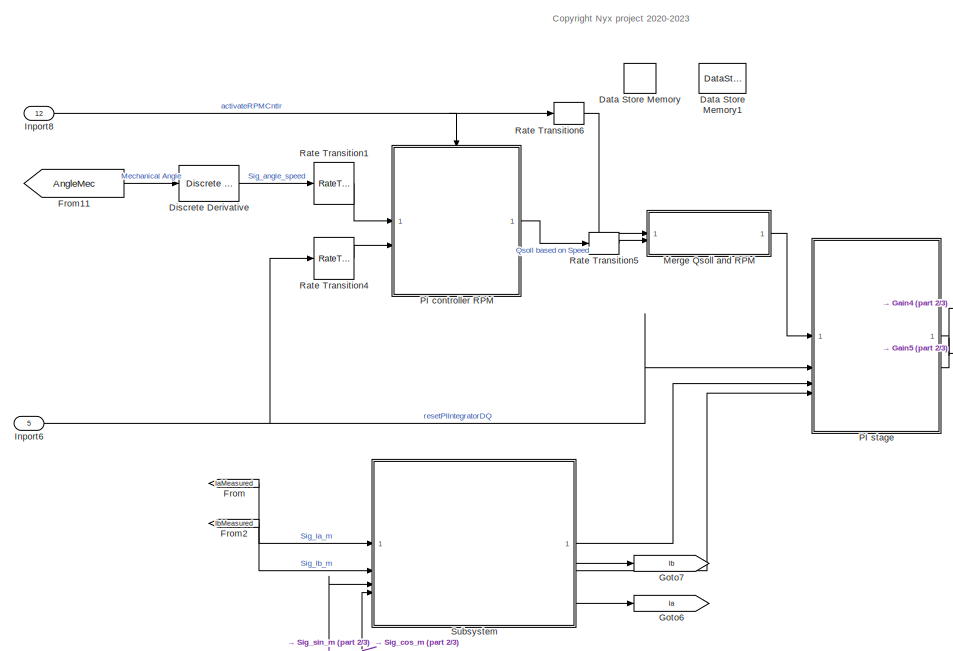
[diagram: root canvas - part 1/3, top left region]
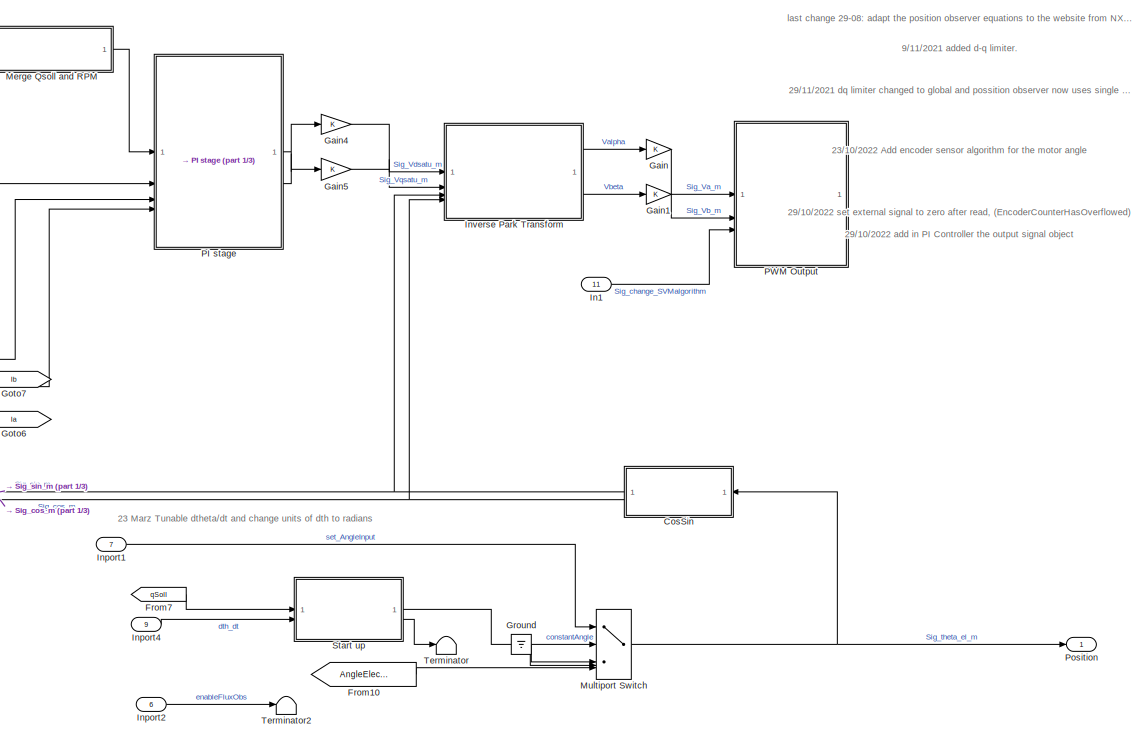
[diagram: root canvas - part 2/3, middle right region]
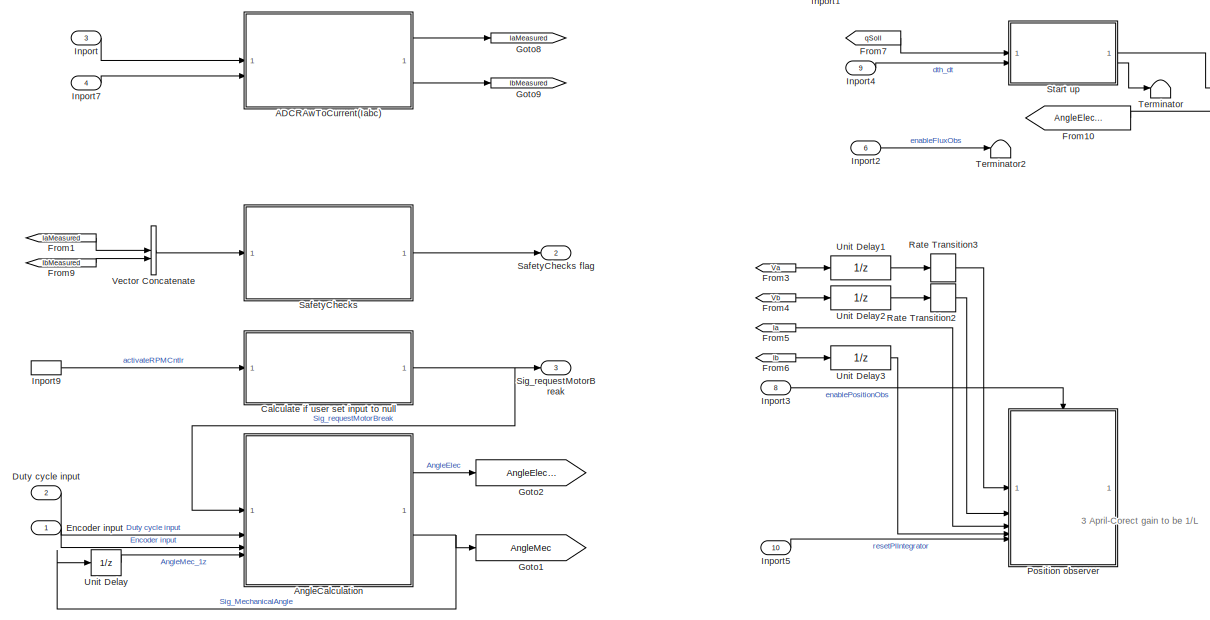
[diagram: root canvas - part 3/3, bottom left region]
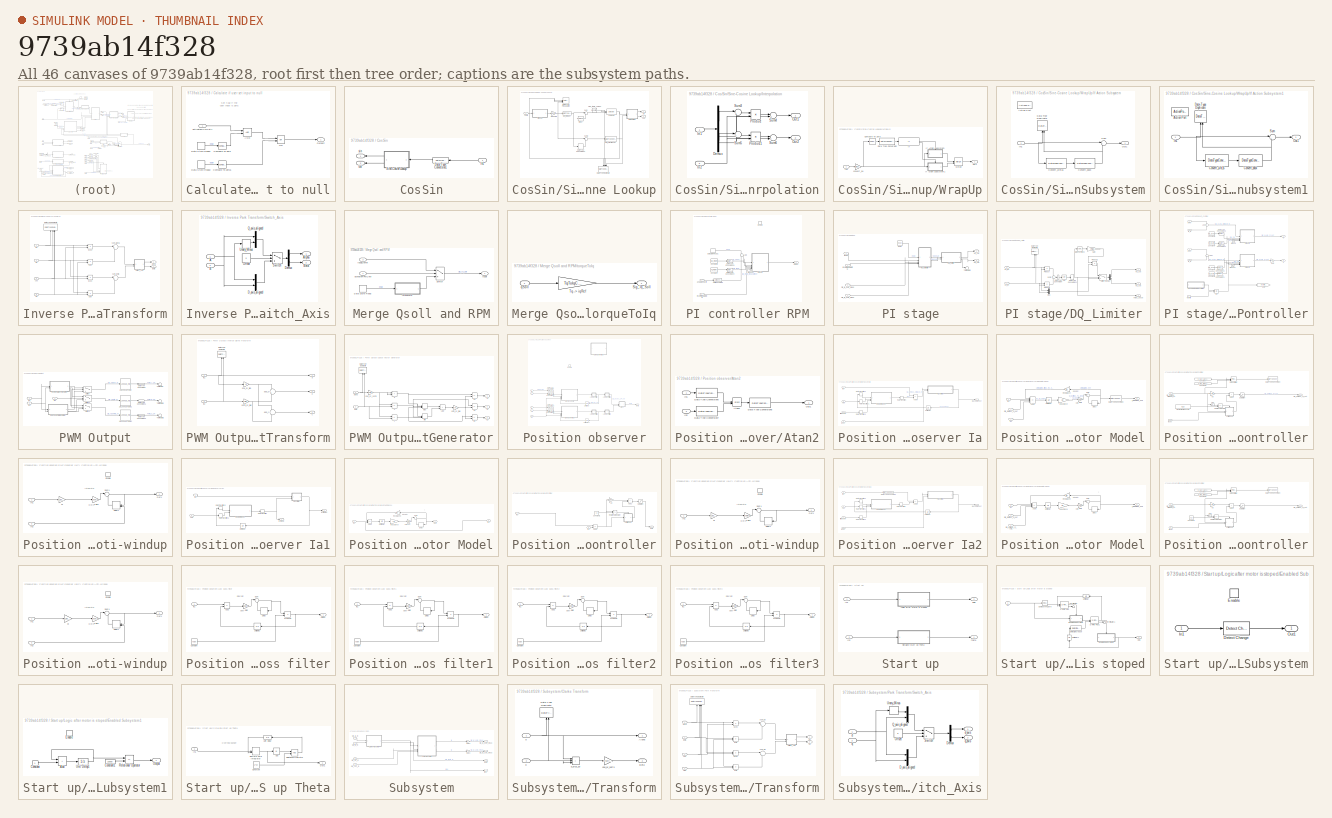
[diagram: thumbnail index - all 46 canvases of the model, root first then tree order]
MODEL slx_9739ab14f328
KIND model
CONFIG AbsTol = auto
CONFIG EnableMultiTasking = on
CONFIG FixedStep = Ts
CONFIG MaxStep = auto
CONFIG MinStep = auto
CONFIG RelTol = 1e-3
CONFIG SampleTimeConstraint = Unconstrained
CONFIG SolverName = FixedStepDiscrete
CONFIG StartTime = 0.0
CONFIG StopTime = 100
BLOCK [ModelReference] ADCRAwToCurrent(Iabc)
  ModelNameDialog = ADCRawToIab
  ModelReferenceVersion = 7.2
BLOCK [ModelReference] AngleCalculation
  ModelNameDialog = ConvertPWMtoAngle.slx
  ModelReferenceVersion = 7.35
BLOCK [SubSystem] Calculate if user set input to null
BLOCK [Logic] Calculate if user set input to null/AND
  AllPortsSameDT = off
  IconShape = distinctive
  OutDataTypeStr = boolean
BLOCK [Reference] Calculate if user set input to null/Compare To Zero  REF=simulink/Logic and Bit
Operations/Compare
To Zero
  SourceBlock = simulink/Logic and Bit\nOperations/Compare\nTo Zero
  SourceType = Compare To Zero
BLOCK [Reference] Calculate if user set input to null/Compare To Zero1  REF=simulink/Logic and Bit
Operations/Compare
To Zero
  SourceBlock = simulink/Logic and Bit\nOperations/Compare\nTo Zero
  SourceType = Compare To Zero
BLOCK [DataStoreRead] Calculate if user set input to null/Data Store Read1
  DataStoreName = rpmSoll
  IndexOptions = Index vector (dialog)
  Indices = 1
  OutputSizes = 1
BLOCK [DataStoreRead] Calculate if user set input to null/Data Store Read2
  DataStoreName = qSoll
  IndexOptions = Index vector (dialog)
  Indices = 1
  OutputSizes = 1
BLOCK [Logic] Calculate if user set input to null/OR
  AllPortsSameDT = off
  IconShape = distinctive
  Operator = OR
  OutDataTypeStr = boolean
BLOCK [Outport] Calculate if user set input to null/Outport
BLOCK [Inport] Calculate if user set input to null/activateRPMCntlr
BLOCK [SubSystem] CosSin
  NameLocation = top
BLOCK [DataTypeConversion] CosSin/Data Type Conversion1
  NameLocation = top
  RndMeth = Floor
  SaturateOnIntegerOverflow = off
BLOCK [Inport] CosSin/In1
BLOCK [SubSystem] CosSin/Sine-Cosine Lookup
  NameLocation = top
BLOCK [DataTypeConversion] CosSin/Sine-Cosine Lookup/Data Type Conversion1
  RndMeth = Simplest
  SaturateOnIntegerOverflow = off
BLOCK [DataTypeDuplicate] CosSin/Sine-Cosine Lookup/Data Type Duplicate
  NameLocation = left
  NumInputPorts = 4
BLOCK [Reference] CosSin/Sine-Cosine Lookup/Data Type Propagation  REF=simulink/Signal
Attributes/Data Type
Propagation
  SourceBlock = simulink/Signal\nAttributes/Data Type\nPropagation
  SourceType = Data Type Propagation
BLOCK [DataTypeConversion] CosSin/Sine-Cosine Lookup/Get_FractionVal
  RndMeth = Simplest
  SaturateOnIntegerOverflow = off
BLOCK [DataTypeConversion] CosSin/Sine-Cosine Lookup/Get_Integer
  OutDataTypeStr = uint16
  RndMeth = Simplest
  SaturateOnIntegerOverflow = off
BLOCK [SubSystem] CosSin/Sine-Cosine Lookup/Interpolation
BLOCK [Demux] CosSin/Sine-Cosine Lookup/Interpolation/Demux
BLOCK [Inport] CosSin/Sine-Cosine Lookup/Interpolation/In1
BLOCK [Inport] CosSin/Sine-Cosine Lookup/Interpolation/In2
  Port = 2
BLOCK [Outport] CosSin/Sine-Cosine Lookup/Interpolation/Out1
BLOCK [Outport] CosSin/Sine-Cosine Lookup/Interpolation/Out2
  Port = 2
BLOCK [Product] CosSin/Sine-Cosine Lookup/Interpolation/Product
  OutDataTypeStr = Inherit: Same as first input
  RndMeth = Simplest
BLOCK [Product] CosSin/Sine-Cosine Lookup/Interpolation/Product1
  OutDataTypeStr = Inherit: Same as first input
  RndMeth = Simplest
BLOCK [Sum] CosSin/Sine-Cosine Lookup/Interpolation/Sum3
  AccumDataTypeStr = Inherit: Same as first input
  Inputs = |+-
  OutDataTypeStr = Inherit: Same as first input
  RndMeth = Simplest
BLOCK [Sum] CosSin/Sine-Cosine Lookup/Interpolation/Sum4
  AccumDataTypeStr = Inherit: Same as first input
  Inputs = |++
  OutDataTypeStr = Inherit: Same as first input
  RndMeth = Simplest
BLOCK [Sum] CosSin/Sine-Cosine Lookup/Interpolation/Sum5
  AccumDataTypeStr = Inherit: Same as first input
  Inputs = |+-
  OutDataTypeStr = Inherit: Same as first input
  RndMeth = Simplest
BLOCK [Sum] CosSin/Sine-Cosine Lookup/Interpolation/Sum6
  AccumDataTypeStr = Inherit: Same as first input
  Inputs = |++
  OutDataTypeStr = Inherit: Same as first input
  RndMeth = Simplest
BLOCK [Selector] CosSin/Sine-Cosine Lookup/Lookup
  IndexMode = Zero-based
  IndexOptions = Index vector (port)
  Indices = [1 3]
  InputPortWidth = dlgSett.size
  OutputSizes = 1
BLOCK [Sum] CosSin/Sine-Cosine Lookup/Sum
  AccumDataTypeStr = uint32
  Inputs = |++
  OutDataTypeStr = uint32
  RndMeth = Simplest
BLOCK [Sum] CosSin/Sine-Cosine Lookup/Sum2
  AccumDataTypeStr = Inherit: Same as first input
  Inputs = |+-
  OutDataTypeStr = Inherit: Same as first input
  RndMeth = Simplest
BLOCK [Inport] CosSin/Sine-Cosine Lookup/Theta
BLOCK [SubSystem] CosSin/Sine-Cosine Lookup/WrapUp
BLOCK [Reference] CosSin/Sine-Cosine Lookup/WrapUp/Compare To Zero  REF=simulink/Logic and Bit
Operations/Compare
To Zero
  SourceBlock = simulink/Logic and Bit\nOperations/Compare\nTo Zero
  SourceType = Compare To Zero
BLOCK [DataTypeConversion] CosSin/Sine-Cosine Lookup/WrapUp/Data Type Conversion
  ConvertRealWorld = Stored Integer (SI)
  OutDataTypeStr = uint16
  RndMeth = Simplest
  SaturateOnIntegerOverflow = off
BLOCK [If] CosSin/Sine-Cosine Lookup/WrapUp/If
BLOCK [SubSystem] CosSin/Sine-Cosine Lookup/WrapUp/If Action Subsystem
  TreatAsAtomicUnit = on
BLOCK [ActionPort] CosSin/Sine-Cosine Lookup/WrapUp/If Action Subsystem/Action Port
  ActionPortLabel = if(u1 > 0)
BLOCK [DataTypeConversion] CosSin/Sine-Cosine Lookup/WrapUp/If Action Subsystem/Convert_back
  RndMeth = Simplest
  SaturateOnIntegerOverflow = off
BLOCK [DataTypeConversion] CosSin/Sine-Cosine Lookup/WrapUp/If Action Subsystem/Convert_uint16
  OutDataTypeStr = int16
  RndMeth = Floor
  SaturateOnIntegerOverflow = off
BLOCK [DataTypeDuplicate] CosSin/Sine-Cosine Lookup/WrapUp/If Action Subsystem/Data Type Duplicate
  NameLocation = right
BLOCK [Inport] CosSin/Sine-Cosine Lookup/WrapUp/If Action Subsystem/In1
BLOCK [Outport] CosSin/Sine-Cosine Lookup/WrapUp/If Action Subsystem/Out1
BLOCK [Sum] CosSin/Sine-Cosine Lookup/WrapUp/If Action Subsystem/Sum
  Inputs = |+-
  OutDataTypeStr = Inherit: Same as first input
  RndMeth = Simplest
BLOCK [SubSystem] CosSin/Sine-Cosine Lookup/WrapUp/If Action Subsystem1
  TreatAsAtomicUnit = on
BLOCK [ActionPort] CosSin/Sine-Cosine Lookup/WrapUp/If Action Subsystem1/Action Port
  ActionPortLabel = else
BLOCK [DataTypeConversion] CosSin/Sine-Cosine Lookup/WrapUp/If Action Subsystem1/Convert_back
  RndMeth = Simplest
  SaturateOnIntegerOverflow = off
BLOCK [DataTypeConversion] CosSin/Sine-Cosine Lookup/WrapUp/If Action Subsystem1/Convert_uint16
  OutDataTypeStr = int16
  RndMeth = Simplest
  SaturateOnIntegerOverflow = off
BLOCK [DataTypeDuplicate] CosSin/Sine-Cosine Lookup/WrapUp/If Action Subsystem1/Data Type Duplicate
  NameLocation = right
BLOCK [Inport] CosSin/Sine-Cosine Lookup/WrapUp/If Action Subsystem1/In1
BLOCK [Outport] CosSin/Sine-Cosine Lookup/WrapUp/If Action Subsystem1/Out1
BLOCK [Sum] CosSin/Sine-Cosine Lookup/WrapUp/If Action Subsystem1/Sum
  Inputs = |+-
  OutDataTypeStr = Inherit: Same as first input
  RndMeth = Simplest
BLOCK [Inport] CosSin/Sine-Cosine Lookup/WrapUp/In1
BLOCK [Merge] CosSin/Sine-Cosine Lookup/WrapUp/Merge
BLOCK [Outport] CosSin/Sine-Cosine Lookup/WrapUp/Out1
BLOCK [Gain] CosSin/Sine-Cosine Lookup/WrapUp/convert_pu
  Gain = 1/(dlgSett.UpperSatLimit)
  OutDataTypeStr = Inherit: Same as input
  RndMeth = Simplest
BLOCK [Outport] CosSin/Sine-Cosine Lookup/cos
  Port = 2
  VectorParamsAs1DForOutWhenUnconnected = off
BLOCK [Gain] CosSin/Sine-Cosine Lookup/indexing
  Gain = dlgSett.index_gain
  OutDataTypeStr = Inherit: Inherit via back propagation
  RndMeth = Simplest
BLOCK [Constant] CosSin/Sine-Cosine Lookup/offset
  OutDataTypeStr = int16
  SampleTime = -1
  Value = [1 0 (dlgSett.Offset+1) dlgSett.Offset]
BLOCK [Outport] CosSin/Sine-Cosine Lookup/sin
  NameLocation = top
  VectorParamsAs1DForOutWhenUnconnected = off
BLOCK [Constant] CosSin/Sine-Cosine Lookup/sine_table_values
  NameLocation = top
  OutDataTypeStr = Inherit: Inherit via back propagation
  SampleTime = -1
  Value = dlgSett.sin_table
BLOCK [Outport] CosSin/cos
  NameLocation = top
  Port = 2
BLOCK [Outport] CosSin/sin
  NameLocation = top
BLOCK [DataStoreMemory] Data Store Memory
  DataStoreName = qSoll
  ReadBeforeWriteMsg = warning
  ShowAdditionalParam = off
  StateMustResolveToSignalObject = on
  WriteAfterReadMsg = warning
  WriteAfterWriteMsg = warning
BLOCK [DataStoreMemory] Data Store Memory1
  DataStoreName = rpmSoll
  ReadBeforeWriteMsg = warning
  ShowAdditionalParam = off
  StateMustResolveToSignalObject = on
  WriteAfterReadMsg = warning
  WriteAfterWriteMsg = warning
BLOCK [Reference] Discrete Derivative  REF=simulink/Discrete/Discrete Derivative
  SourceBlock = simulink/Discrete/Discrete Derivative
  SourceType = Discrete Derivative
BLOCK [Inport] Duty cycle input
  Port = 2
BLOCK [Inport] Encoder input
BLOCK [From] From
  GotoTag = IaMeasured
BLOCK [From] From1
  GotoTag = IaMeasured
BLOCK [From] From10
  GotoTag = AngleElecSensor
BLOCK [From] From11
  GotoTag = AngleMec
BLOCK [From] From2
  GotoTag = IbMeasured
BLOCK [From] From3
  Commented = on
  GotoTag = Va
BLOCK [From] From4
  Commented = on
  GotoTag = Vb
BLOCK [From] From5
  Commented = on
  GotoTag = Ia
BLOCK [From] From6
  Commented = on
  GotoTag = Ib
BLOCK [From] From7
  GotoTag = qSoll
BLOCK [From] From9
  GotoTag = IbMeasured
BLOCK [Gain] Gain
  OutDataTypeStr = Inherit: Same as input
  ParamDataTypeStr = Inherit: Same as input
BLOCK [Gain] Gain1
  OutDataTypeStr = Inherit: Same as input
  ParamDataTypeStr = Inherit: Same as input
BLOCK [Gain] Gain4
  OutDataTypeStr = Inherit: Inherit via back propagation
BLOCK [Gain] Gain5
  OutDataTypeStr = Inherit: Inherit via back propagation
BLOCK [Goto] Goto1
  GotoTag = AngleMec
BLOCK [Goto] Goto2
  GotoTag = AngleElecSensor
BLOCK [Goto] Goto6
  GotoTag = Ia
BLOCK [Goto] Goto7
  GotoTag = Ib
BLOCK [Goto] Goto8
  GotoTag = IaMeasured
BLOCK [Goto] Goto9
  GotoTag = IbMeasured
BLOCK [Ground] Ground
BLOCK [Inport] In1
  Port = 11
BLOCK [Inport] Inport
  Port = 3
BLOCK [Inport] Inport1
  AttributesFormatString = %<SampleTime>
  OutDataTypeStr = uint8
  Port = 7
  SampleTime = 4*Ts
BLOCK [Inport] Inport2
  AttributesFormatString = %<SampleTime>
  OutDataTypeStr = boolean
  Port = 6
  SampleTime = 4*Ts
BLOCK [Inport] Inport3
  AttributesFormatString = %<SampleTime>
  OutDataTypeStr = boolean
  Port = 8
  SampleTime = 4*Ts
BLOCK [Inport] Inport4
  Port = 9
BLOCK [Inport] Inport5
  AttributesFormatString = %<SampleTime>
  OutDataTypeStr = boolean
  Port = 10
  SampleTime = 4*Ts
BLOCK [Inport] Inport6
  OutDataTypeStr = boolean
  Port = 5
BLOCK [Inport] Inport7
  Port = 4
BLOCK [Inport] Inport8
  AttributesFormatString = %<SampleTime>
  OutDataTypeStr = boolean
  Port = 12
  SampleTime = 200*Ts
BLOCK [InportShadow] Inport9
  AttributesFormatString = %<SampleTime>
  OutDataTypeStr = boolean
  Port = 12
  SampleTime = 200*Ts
BLOCK [SubSystem] Inverse Park Transform
  SystemSampleTime = 250*Ts
BLOCK [Outport] Inverse Park Transform/Alpha
  VectorParamsAs1DForOutWhenUnconnected = off
BLOCK [Outport] Inverse Park Transform/Beta
  Port = 2
  VectorParamsAs1DForOutWhenUnconnected = off
BLOCK [DataTypeDuplicate] Inverse Park Transform/Data Type Duplicate
  NameLocation = right
  NumInputPorts = 4
BLOCK [Inport] Inverse Park Transform/Ds
BLOCK [Inport] Inverse Park Transform/Qs
  Port = 2
BLOCK [SubSystem] Inverse Park Transform/Switch_Axis
  NameLocation = top
BLOCK [Inport] Inverse Park Transform/Switch_Axis/A
BLOCK [Outport] Inverse Park Transform/Switch_Axis/Alpha
  VectorParamsAs1DForOutWhenUnconnected = off
BLOCK [Inport] Inverse Park Transform/Switch_Axis/B
  Port = 2
BLOCK [Outport] Inverse Park Transform/Switch_Axis/Beta
  Port = 2
  VectorParamsAs1DForOutWhenUnconnected = off
BLOCK [Mux] Inverse Park Transform/Switch_Axis/D_axis_aligned
  DisplayOption = bar
  Inputs = 2
  NameLocation = top
BLOCK [Demux] Inverse Park Transform/Switch_Axis/Demux
  Outputs = 2
BLOCK [Constant] Inverse Park Transform/Switch_Axis/Offset
  OutDataTypeStr = uint16
  SampleTime = -1
  Value = 0
BLOCK [Mux] Inverse Park Transform/Switch_Axis/Q_axis_aligned
  DisplayOption = bar
  Inputs = 2
  NameLocation = top
BLOCK [Switch] Inverse Park Transform/Switch_Axis/Switch
  Criteria = u2 > Threshold
  InputSameDT = off
  RndMeth = Simplest
  SaturateOnIntegerOverflow = off
  Threshold = 1
  ZeroCross = off
BLOCK [UnaryMinus] Inverse Park Transform/Switch_Axis/Unary_Minus
BLOCK [Inport] Inverse Park Transform/cos
  Port = 4
BLOCK [Product] Inverse Park Transform/dcos
  OutDataTypeStr = Inherit: Same as first input
  RndMeth = Simplest
BLOCK [Product] Inverse Park Transform/dsin
  OutDataTypeStr = Inherit: Same as first input
  RndMeth = Simplest
BLOCK [Product] Inverse Park Transform/qcos
  OutDataTypeStr = Inherit: Same as first input
  RndMeth = Simplest
BLOCK [Product] Inverse Park Transform/qsin
  OutDataTypeStr = Inherit: Same as first input
  RndMeth = Simplest
BLOCK [Inport] Inverse Park Transform/sin
  Port = 3
BLOCK [Sum] Inverse Park Transform/sum_alpha
  AccumDataTypeStr = Inherit: Same as first input
  Inputs = |+-
  NameLocation = top
  OutDataTypeStr = Inherit: Same as first input
  RndMeth = Simplest
BLOCK [Sum] Inverse Park Transform/sum_beta
  AccumDataTypeStr = Inherit: Same as first input
  Inputs = |++
  NameLocation = top
  OutDataTypeStr = Inherit: Same as first input
  RndMeth = Simplest
BLOCK [SubSystem] Merge Qsoll and RPM
BLOCK [DataStoreRead] Merge Qsoll and RPM/Data Store Read
  DataStoreName = qSoll
  IndexOptions = Index vector (dialog)
  Indices = 1
  OutputSizes = 1
BLOCK [Outport] Merge Qsoll and RPM/IqSoll
BLOCK [Inport] Merge Qsoll and RPM/IqSoll_rpmin
  Port = 2
BLOCK [Switch] Merge Qsoll and RPM/Switch
  Criteria = u2 > Threshold
  InputSameDT = off
  SaturateOnIntegerOverflow = off
BLOCK [Inport] Merge Qsoll and RPM/activateRPMCntlr
BLOCK [SubSystem] Merge Qsoll and RPM/torqueToIq
BLOCK [Outport] Merge Qsoll and RPM/torqueToIq/Sig_Iq_Soll
BLOCK [Gain] Merge Qsoll and RPM/torqueToIq/Tq--> iqRef
  Gain = TqToIqConst
  OutDataTypeStr = single
  ParamDataTypeStr = Inherit: Inherit from 'Gain'
BLOCK [Inport] Merge Qsoll and RPM/torqueToIq/qSoll
BLOCK [MultiPortSwitch] Multiport Switch
  DataPortOrder = Zero-based contiguous
  InputSameDT = off
  Inputs = 4
  SaturateOnIntegerOverflow = off
  zeroidx = on
BLOCK [SubSystem] PI controller RPM
  MinAlgLoopOccurrences = on
  SystemSampleTime = 50*Ts
  TreatAsAtomicUnit = on
BLOCK [Sum] PI controller RPM/Add
  Inputs = +|-
  RndMeth = Simplest
BLOCK [Constant] PI controller RPM/Constant6
  Value = Kp_Rpm
BLOCK [Constant] PI controller RPM/Constant7
  Value = Ki_Rpm
BLOCK [DataStoreRead] PI controller RPM/Data Store Read1
  DataStoreName = rpmSoll
  IndexOptions = Index vector (dialog)
  Indices = 1
  OutputSizes = 1
BLOCK [DataTypeConversion] PI controller RPM/Data Type Conversion3
  OutDataTypeStr = single
  RndMeth = Floor
  SaturateOnIntegerOverflow = off
BLOCK [DataTypeConversion] PI controller RPM/Data Type Conversion4
  OutDataTypeStr = single
  RndMeth = Floor
  SaturateOnIntegerOverflow = off
BLOCK [EnablePort] PI controller RPM/Enable
BLOCK [Ground] PI controller RPM/Ground1
BLOCK [SubSystem] PI controller RPM/PI DAxis
  RTWSystemCode = Reusable function
  ReferencedSubsystem = PID_custom
  TreatAsAtomicUnit = on
BLOCK [Outport] PI controller RPM/PID Out
BLOCK [UnitConversion] PI controller RPM/Unit Conversion
BLOCK [Inport] PI controller RPM/anglular velocity
BLOCK [Inport] PI controller RPM/resetPIIntegratorDQ
  Port = 2
BLOCK [SubSystem] PI stage
BLOCK [SubSystem] PI stage/DQ_Limiter
  RTWFcnNameOpts = Use subsystem name
  RTWSystemCode = Reusable function
  SystemSampleTime = 4*Ts
  TreatAsAtomicUnit = on
BLOCK [DataTypeConversion] PI stage/DQ_Limiter/Data Type Conversion
  OutDataTypeStr = single
  RndMeth = Floor
  SaturateOnIntegerOverflow = off
BLOCK [DataTypeConversion] PI stage/DQ_Limiter/Data Type Conversion1
  RndMeth = Floor
  SaturateOnIntegerOverflow = off
BLOCK [DataTypeDuplicate] PI stage/DQ_Limiter/Data Type Duplicate
  NameLocation = right
BLOCK [Demux] PI stage/DQ_Limiter/Demux
  Outputs = 2
BLOCK [Gain] PI stage/DQ_Limiter/Gain
  Gain = Vmax
  OutDataTypeStr = Inherit: Same as input
BLOCK [Math] PI stage/DQ_Limiter/Math Function2
  Operator = reciprocal
  RndMeth = Simplest
  SaturateOnIntegerOverflow = off
  SignedPower = on
BLOCK [Mux] PI stage/DQ_Limiter/Mux
  DisplayOption = bar
  Inputs = 2
BLOCK [Product] PI stage/DQ_Limiter/Product
  OutDataTypeStr = Inherit: Same as first input
  RndMeth = Simplest
BLOCK [Product] PI stage/DQ_Limiter/Product1
  OutDataTypeStr = Inherit: Same as first input
  RndMeth = Simplest
BLOCK [Product] PI stage/DQ_Limiter/Product2
  OutDataTypeStr = Inherit: Same as first input
BLOCK [Sqrt] PI stage/DQ_Limiter/Sqrt
  IntermediateResultsDataTypeStr = Inherit: Inherit from input
BLOCK [Sum] PI stage/DQ_Limiter/Sum2
  AccumDataTypeStr = Inherit: Same as first input
  OutDataTypeStr = Inherit: Same as first input
BLOCK [Switch] PI stage/DQ_Limiter/Switch
  InputSameDT = off
  SaturateOnIntegerOverflow = off
  Threshold = Vmax
  ZeroCross = off
BLOCK [Inport] PI stage/DQ_Limiter/Vd_ref
BLOCK [Outport] PI stage/DQ_Limiter/Vd_sat
  NameLocation = top
  VectorParamsAs1DForOutWhenUnconnected = off
BLOCK [Outport] PI stage/DQ_Limiter/Vmax_unsat
  Port = 3
  VectorParamsAs1DForOutWhenUnconnected = off
BLOCK [Inport] PI stage/DQ_Limiter/Vq_ref
  Port = 2
BLOCK [Outport] PI stage/DQ_Limiter/Vq_sat
  Port = 2
  VectorParamsAs1DForOutWhenUnconnected = off
BLOCK [Inport] PI stage/IqSoll
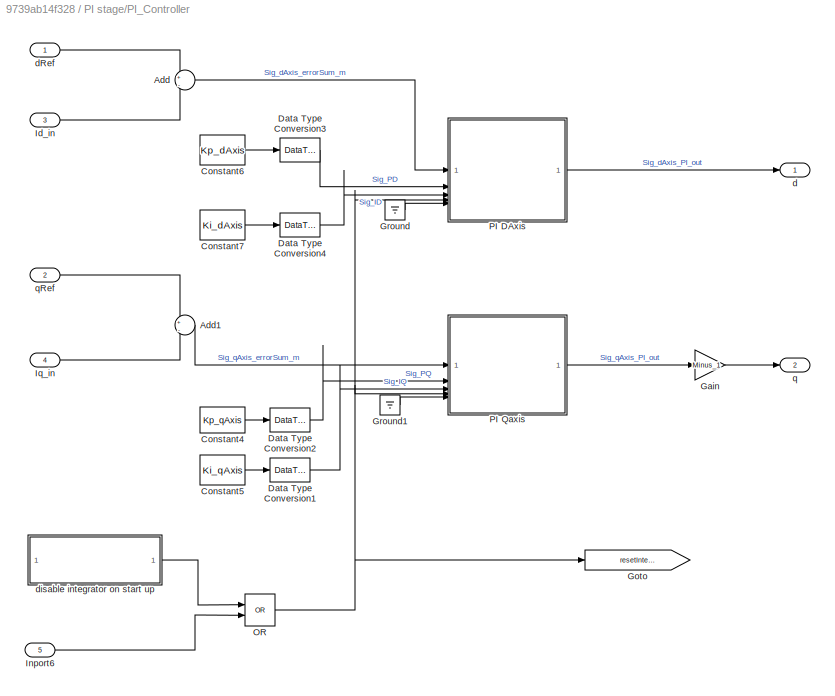
BLOCK [SubSystem] PI stage/PI_Controller
  RTWFcnNameOpts = Use subsystem name
  SystemSampleTime = 4*Ts
  TreatAsAtomicUnit = on
BLOCK [Sum] PI stage/PI_Controller/Add
  Inputs = +|-
  RndMeth = Simplest
BLOCK [Sum] PI stage/PI_Controller/Add1
  Inputs = +|-
  RndMeth = Simplest
BLOCK [Constant] PI stage/PI_Controller/Constant4
  Value = Kp_qAxis
BLOCK [Constant] PI stage/PI_Controller/Constant5
  Value = Ki_qAxis
BLOCK [Constant] PI stage/PI_Controller/Constant6
  Value = Kp_dAxis
BLOCK [Constant] PI stage/PI_Controller/Constant7
  Value = Ki_dAxis
BLOCK [DataTypeConversion] PI stage/PI_Controller/Data Type Conversion1
  OutDataTypeStr = single
  RndMeth = Floor
  SaturateOnIntegerOverflow = off
BLOCK [DataTypeConversion] PI stage/PI_Controller/Data Type Conversion2
  OutDataTypeStr = single
  RndMeth = Floor
  SaturateOnIntegerOverflow = off
BLOCK [DataTypeConversion] PI stage/PI_Controller/Data Type Conversion3
  OutDataTypeStr = single
  RndMeth = Floor
  SaturateOnIntegerOverflow = off
BLOCK [DataTypeConversion] PI stage/PI_Controller/Data Type Conversion4
  OutDataTypeStr = single
  RndMeth = Floor
  SaturateOnIntegerOverflow = off
BLOCK [Gain] PI stage/PI_Controller/Gain
  Gain = Minus_1
BLOCK [Goto] PI stage/PI_Controller/Goto
  GotoTag = resetIntegrator
BLOCK [Ground] PI stage/PI_Controller/Ground
BLOCK [Ground] PI stage/PI_Controller/Ground1
BLOCK [Inport] PI stage/PI_Controller/Id_in
  NameLocation = top
  Port = 3
BLOCK [Inport] PI stage/PI_Controller/Inport6
  NameLocation = top
  Port = 5
BLOCK [Inport] PI stage/PI_Controller/Iq_in
  NameLocation = top
  Port = 4
BLOCK [Logic] PI stage/PI_Controller/OR
  AllPortsSameDT = off
  IconShape = distinctive
  Operator = OR
  OutDataTypeStr = boolean
BLOCK [SubSystem] PI stage/PI_Controller/PI DAxis
  RTWSystemCode = Reusable function
  ReferencedSubsystem = PID_custom
  TreatAsAtomicUnit = on
BLOCK [SubSystem] PI stage/PI_Controller/PI Qaxis
  RTWSystemCode = Reusable function
  ReferencedSubsystem = PID_custom
  TreatAsAtomicUnit = on
BLOCK [Outport] PI stage/PI_Controller/d
BLOCK [Inport] PI stage/PI_Controller/dRef
BLOCK [SubSystem] PI stage/PI_Controller/disable integrator on start up
  ReferencedSubsystem = disable_integrator_on_start_up
BLOCK [Outport] PI stage/PI_Controller/q
  Port = 2
BLOCK [Inport] PI stage/PI_Controller/qRef
  Port = 2
BLOCK [Inport] PI stage/Sig_Id_axis_meas
  NameLocation = top
  Port = 3
BLOCK [Inport] PI stage/Sig_Iq_axis_meas
  NameLocation = top
  Port = 4
BLOCK [Terminator] PI stage/Terminator1
BLOCK [Outport] PI stage/Vd_sat
BLOCK [Outport] PI stage/Vq_sat
  Port = 2
BLOCK [Constant] PI stage/d Soll
  Value = dSoll
BLOCK [Inport] PI stage/resetPIIntegratorDQ
  Port = 2
BLOCK [SubSystem] PWM Output
BLOCK [Lookup_n-D] PWM Output/1-D Lookup Table
  BreakpointsForDimension1 = BrkPoints
  ExtrapMethod = Clip
  InputPortMap = u0
  InternalRulePriority = Speed
  NumberOfTableDimensions = 1
  OutDataTypeStr = uint16
  RndMeth = Simplest
  SaturateOnIntegerOverflow = on
  Table = pwmTableData
BLOCK [Lookup_n-D] PWM Output/1-D Lookup Table1
  BreakpointsForDimension1 = BrkPoints
  ExtrapMethod = Clip
  InputPortMap = u0
  InternalRulePriority = Speed
  NumberOfTableDimensions = 1
  OutDataTypeStr = uint16
  RndMeth = Simplest
  SaturateOnIntegerOverflow = on
  Table = pwmTableData
BLOCK [Lookup_n-D] PWM Output/1-D Lookup Table2
  BreakpointsForDimension1 = BrkPoints
  ExtrapMethod = Clip
  InputPortMap = u0
  InternalRulePriority = Speed
  NumberOfTableDimensions = 1
  OutDataTypeStr = uint16
  RndMeth = Simplest
  SaturateOnIntegerOverflow = on
  Table = pwmTableData
BLOCK [DataTypeConversion] PWM Output/Data Type Conversion
  RndMeth = Floor
  SaturateOnIntegerOverflow = off
BLOCK [DataTypeConversion] PWM Output/Data Type Conversion1
  RndMeth = Floor
  SaturateOnIntegerOverflow = off
BLOCK [DataTypeConversion] PWM Output/Data Type Conversion2
  RndMeth = Floor
  SaturateOnIntegerOverflow = off
BLOCK [Inport] PWM Output/In1
BLOCK [Inport] PWM Output/In2
  Port = 2
BLOCK [Inport] PWM Output/In3
  Port = 3
BLOCK [SubSystem] PWM Output/Inverse Clarke Transform
  TreatAsAtomicUnit = on
BLOCK [DataTypeDuplicate] PWM Output/Inverse Clarke Transform/Data Type Duplicate
  NameLocation = right
BLOCK [Inport] PWM Output/Inverse Clarke Transform/In1
BLOCK [Inport] PWM Output/Inverse Clarke Transform/In2
  Port = 2
BLOCK [Outport] PWM Output/Inverse Clarke Transform/a
  VectorParamsAs1DForOutWhenUnconnected = off
BLOCK [Sum] PWM Output/Inverse Clarke Transform/add_b
  AccumDataTypeStr = Inherit: Same as first input
  Inputs = -+
  OutDataTypeStr = Inherit: Same as first input
  RndMeth = Simplest
BLOCK [Sum] PWM Output/Inverse Clarke Transform/add_c
  AccumDataTypeStr = Inherit: Same as first input
  Inputs = --
  OutDataTypeStr = Inherit: Same as first input
  RndMeth = Simplest
BLOCK [Outport] PWM Output/Inverse Clarke Transform/b
  Port = 2
  VectorParamsAs1DForOutWhenUnconnected = off
BLOCK [Outport] PWM Output/Inverse Clarke Transform/c
  Port = 3
  VectorParamsAs1DForOutWhenUnconnected = off
BLOCK [Gain] PWM Output/Inverse Clarke Transform/one_by_two
  Gain = 1/2
  NameLocation = top
  OutDataTypeStr = Inherit: Same as input
  RndMeth = Simplest
BLOCK [Gain] PWM Output/Inverse Clarke Transform/sqrt3_by_two
  Gain = sqrt(3)/2
  OutDataTypeStr = Inherit: Same as input
  RndMeth = Simplest
BLOCK [SubSystem] PWM Output/Space Vector Generator
  TreatAsAtomicUnit = on
BLOCK [Sum] PWM Output/Space Vector Generator/Add
  AccumDataTypeStr = Inherit: Same as first input
  IconShape = rectangular
  OutDataTypeStr = Inherit: Same as first input
  RndMeth = Simplest
BLOCK [Inport] PWM Output/Space Vector Generator/Alpha
BLOCK [Inport] PWM Output/Space Vector Generator/Beta
  Port = 2
BLOCK [Sum] PWM Output/Space Vector Generator/Da
  AccumDataTypeStr = Inherit: Same as first input
  IconShape = rectangular
  Inputs = +-
  OutDataTypeStr = Inherit: Same as first input
  RndMeth = Simplest
BLOCK [DataTypeDuplicate] PWM Output/Space Vector Generator/Data Type Duplicate
  NameLocation = right
BLOCK [Sum] PWM Output/Space Vector Generator/Db
  AccumDataTypeStr = Inherit: Same as first input
  IconShape = rectangular
  Inputs = +-
  OutDataTypeStr = Inherit: Same as first input
  RndMeth = Simplest
BLOCK [Sum] PWM Output/Space Vector Generator/Dc
  AccumDataTypeStr = Inherit: Same as first input
  IconShape = rectangular
  Inputs = +-
  OutDataTypeStr = Inherit: Same as first input
  RndMeth = Simplest
BLOCK [MinMax] PWM Output/Space Vector Generator/Max
  Function = max
  Inputs = 3
  RndMeth = Simplest
BLOCK [MinMax] PWM Output/Space Vector Generator/Min
  Inputs = 3
  RndMeth = Simplest
BLOCK [Outport] PWM Output/Space Vector Generator/Ta
  VectorParamsAs1DForOutWhenUnconnected = off
BLOCK [Outport] PWM Output/Space Vector Generator/Tb
  Port = 2
  VectorParamsAs1DForOutWhenUnconnected = off
BLOCK [Outport] PWM Output/Space Vector Generator/Tc
  Port = 3
  VectorParamsAs1DForOutWhenUnconnected = off
BLOCK [Sum] PWM Output/Space Vector Generator/a
  AccumDataTypeStr = Inherit: Same as first input
  IconShape = rectangular
  NameLocation = top
  OutDataTypeStr = Inherit: Same as first input
  RndMeth = Simplest
BLOCK [Sum] PWM Output/Space Vector Generator/b
  AccumDataTypeStr = Inherit: Same as first input
  IconShape = rectangular
  Inputs = -+
  NameLocation = top
  OutDataTypeStr = Inherit: Same as first input
  RndMeth = Simplest
BLOCK [Sum] PWM Output/Space Vector Generator/c
  AccumDataTypeStr = Inherit: Same as first input
  IconShape = rectangular
  Inputs = --
  NameLocation = top
  OutDataTypeStr = Inherit: Same as first input
  RndMeth = Simplest
BLOCK [Gain] PWM Output/Space Vector Generator/one_by_sqrt3
  Gain = 1/sqrt(3)
  NameLocation = top
  OutDataTypeStr = Inherit: Same as input
  ParamDataTypeStr = Inherit: Same as input
  RndMeth = Simplest
BLOCK [Gain] PWM Output/Space Vector Generator/one_by_two
  Gain = 0.5
  NameLocation = top
  OutDataTypeStr = Inherit: Same as input
  ParamDataTypeStr = Inherit: Same as input
  RndMeth = Simplest
BLOCK [Switch] PWM Output/Switch
  Criteria = u2 > Threshold
  InputSameDT = off
  SaturateOnIntegerOverflow = off
BLOCK [Switch] PWM Output/Switch1
  Criteria = u2 > Threshold
  InputSameDT = off
  SaturateOnIntegerOverflow = off
BLOCK [Switch] PWM Output/Switch2
  Criteria = u2 > Threshold
  InputSameDT = off
  SaturateOnIntegerOverflow = off
BLOCK [Terminator] PWM Output/Terminator
BLOCK [Terminator] PWM Output/Terminator1
BLOCK [Terminator] PWM Output/Terminator2
BLOCK [Outport] Position
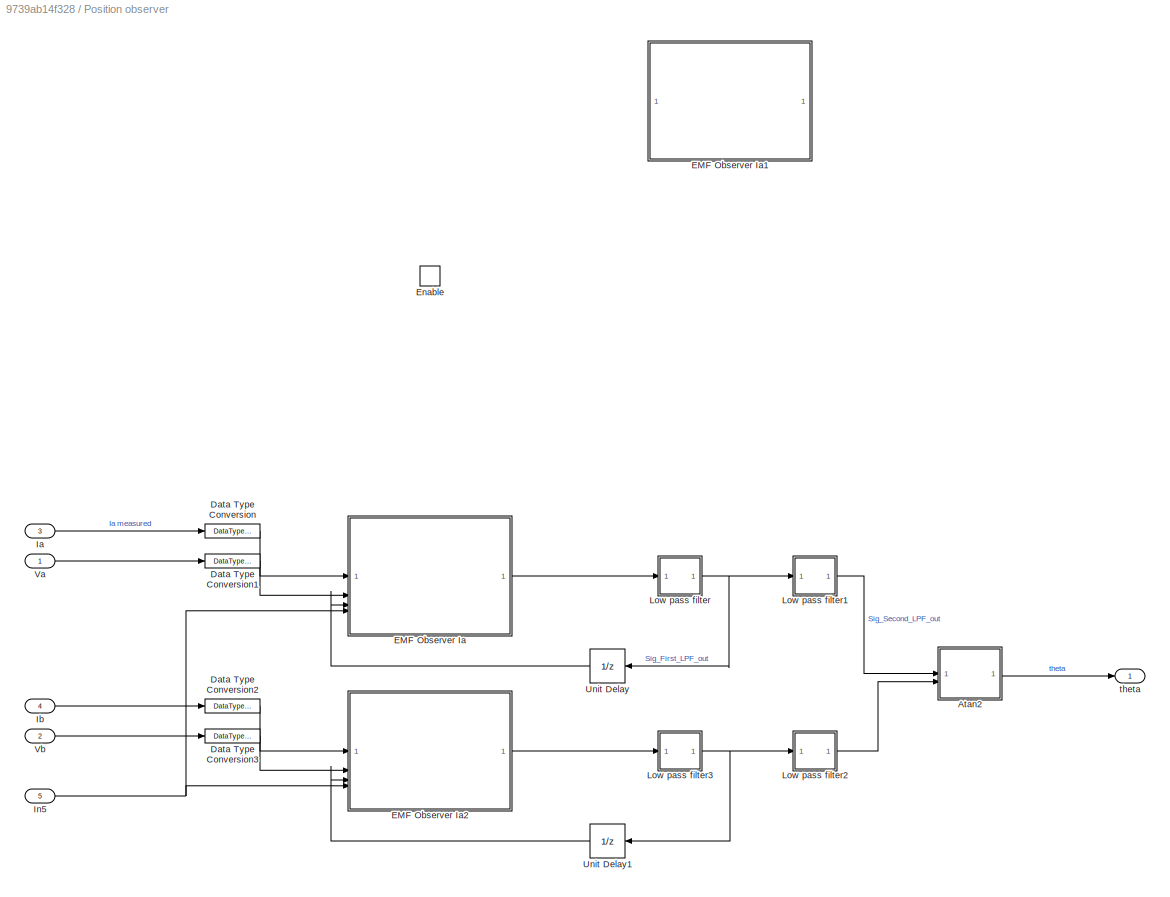
BLOCK [SubSystem] Position observer
  Commented = on
  RTWSystemCode = Reusable function
BLOCK [SubSystem] Position observer/Atan2
BLOCK [Trigonometry] Position observer/Atan2/Atan2
  ApproximationMethod = CORDIC
  NumberOfIterations = 6
  Operator = atan2
BLOCK [DataTypeConversion] Position observer/Atan2/Data Type Conversion5
  RndMeth = Floor
  SaturateOnIntegerOverflow = off
BLOCK [DataTypeConversion] Position observer/Atan2/Data Type Conversion6
  OutDataTypeStr = single
  RndMeth = Floor
  SaturateOnIntegerOverflow = off
BLOCK [DataTypeConversion] Position observer/Atan2/Data Type Conversion7
  OutDataTypeStr = single
  RndMeth = Floor
  SaturateOnIntegerOverflow = off
BLOCK [Inport] Position observer/Atan2/In1
BLOCK [Inport] Position observer/Atan2/In2
  Port = 2
BLOCK [Outport] Position observer/Atan2/Out1
BLOCK [DataTypeConversion] Position observer/Data Type Conversion
  OutDataTypeStr = single
  RndMeth = Floor
  SaturateOnIntegerOverflow = off
BLOCK [DataTypeConversion] Position observer/Data Type Conversion1
  OutDataTypeStr = single
  RndMeth = Floor
  SaturateOnIntegerOverflow = off
BLOCK [DataTypeConversion] Position observer/Data Type Conversion2
  OutDataTypeStr = single
  RndMeth = Floor
  SaturateOnIntegerOverflow = off
BLOCK [DataTypeConversion] Position observer/Data Type Conversion3
  OutDataTypeStr = single
  RndMeth = Floor
  SaturateOnIntegerOverflow = off
BLOCK [SubSystem] Position observer/EMF Observer Ia
BLOCK [Sum] Position observer/EMF Observer Ia/Add6
  IconShape = rectangular
  InputSameDT = on
  Inputs = -+
BLOCK [Outport] Position observer/EMF Observer Ia/BackEMFest
BLOCK [SubSystem] Position observer/EMF Observer Ia/DC Motor Model
  SystemSampleTime = Ts
  TreatAsAtomicUnit = on
BLOCK [Sum] Position observer/EMF Observer Ia/DC Motor Model/Add5
  AccumDataTypeStr = Inherit: Same as first input
  IconShape = rectangular
  Inputs = -+--
  OutDataTypeStr = Inherit: Same as first input
BLOCK [DataTypeConversion] Position observer/EMF Observer Ia/DC Motor Model/Data Type Conversion
  RndMeth = Floor
  SaturateOnIntegerOverflow = off
BLOCK [Delay] Position observer/EMF Observer Ia/DC Motor Model/Delay
  DelayLength = 1
  InitialCondition = 0
  InputPortMap = u0
  NameLocation = top
  StateName = UnitDelayIntegratorPosObs
BLOCK [Gain] Position observer/EMF Observer Ia/DC Motor Model/Gain
  Gain = TsIntern
  OutDataTypeStr = single
  OutMax = +100
  OutMin = -100
  ParamDataTypeStr = Inherit: Inherit from 'Gain'
  SaturateOnIntegerOverflow = on
BLOCK [Inport] Position observer/EMF Observer Ia/DC Motor Model/In2
  Port = 2
BLOCK [Inport] Position observer/EMF Observer Ia/DC Motor Model/In3
  Port = 3
BLOCK [Gain] Position observer/EMF Observer Ia/DC Motor Model/Inductance
  Gain = Ld
  OutDataTypeStr = single
BLOCK [Gain] Position observer/EMF Observer Ia/DC Motor Model/Resistance
  Gain = Rs
  OutDataTypeStr = Inherit: Inherit via back propagation
BLOCK [Inport] Position observer/EMF Observer Ia/DC Motor Model/Sig_Emfobs_PI_out
  NameLocation = top
BLOCK [Sum] Position observer/EMF Observer Ia/DC Motor Model/Sum
  Inputs = |++
  OutDataTypeStr = Inherit: Same as first input
BLOCK [UnitDelay] Position observer/EMF Observer Ia/DC Motor Model/Unit Delay
  HasFrameUpgradeWarning = on
  SampleTime = -1
BLOCK [Outport] Position observer/EMF Observer Ia/DC Motor Model/i_integrated_en8
BLOCK [Inport] Position observer/EMF Observer Ia/Iab
BLOCK [SubSystem] Position observer/EMF Observer Ia/PI Controller
BLOCK [Abs] Position observer/EMF Observer Ia/PI Controller/Abs
  SaturateOnIntegerOverflow = off
BLOCK [Sum] Position observer/EMF Observer Ia/PI Controller/Add1
  IconShape = rectangular
BLOCK [SubSystem] Position observer/EMF Observer Ia/PI Controller/Anti-windup
BLOCK [Delay] Position observer/EMF Observer Ia/PI Controller/Anti-windup/Delay1
  DelayLength = 1
  ExternalReset = Level
  InitialCondition = 0
  InputPortMap = u0,r5
  NameLocation = top
BLOCK [EnablePort] Position observer/EMF Observer Ia/PI Controller/Anti-windup/Enable
BLOCK [Gain] Position observer/EMF Observer Ia/PI Controller/Anti-windup/Gain1
  Gain = 250e-6
  OutDataTypeStr = single
  ParamDataTypeStr = fixdt(1,16,2^-16,0)
BLOCK [Inport] Position observer/EMF Observer Ia/PI Controller/Anti-windup/In1
BLOCK [Inport] Position observer/EMF Observer Ia/PI Controller/Anti-windup/In2
  Port = 2
BLOCK [Gain] Position observer/EMF Observer Ia/PI Controller/Anti-windup/Ki
  Gain = Ki_Iab_EMFobs
  OutDataTypeStr = Inherit: Same as input
  ParamDataTypeStr = Inherit: Inherit from 'Gain'
BLOCK [Outport] Position observer/EMF Observer Ia/PI Controller/Anti-windup/Out1
BLOCK [Sum] Position observer/EMF Observer Ia/PI Controller/Anti-windup/Sum1
  Inputs = |++
  OutDataTypeStr = fixdt(1,16,2^-8,0)
BLOCK [Constant] Position observer/EMF Observer Ia/PI Controller/Constant
  Commented = on
  Value = Kp_Iab_EMFobs
BLOCK [Constant] Position observer/EMF Observer Ia/PI Controller/Constant2
  Commented = on
  Value = Ki_Iab_EMFobs
BLOCK [DataTypeConversion] Position observer/EMF Observer Ia/PI Controller/Data Type Conversion
  Commented = on
  RndMeth = Floor
  SaturateOnIntegerOverflow = off
BLOCK [Constant] Position observer/EMF Observer Ia/PI Controller/Ki activation treashold
  OutDataTypeStr = single
  Value = 0.23
BLOCK [Gain] Position observer/EMF Observer Ia/PI Controller/Kp
  Gain = Kp_Iab_EMFobs
  OutDataTypeStr = Inherit: Same as input
BLOCK [Reference] Position observer/EMF Observer Ia/PI Controller/PID Controller  REF=slpidlib/PID Controller
  Commented = on
  SourceBlock = slpidlib/PID Controller
  SourceType = PID 1dof
BLOCK [RelationalOperator] Position observer/EMF Observer Ia/PI Controller/Relational Operator
  InputSameDT = off
  Operator = <=
  OutDataTypeStr = boolean
  RndMeth = Simplest
BLOCK [Saturate] Position observer/EMF Observer Ia/PI Controller/Saturation
  LowerLimit = MaxBckEMFVol_sat_neg
  UpperLimit = MaxBckEMFVol_sat_pos
BLOCK [Outport] Position observer/EMF Observer Ia/PI Controller/Sig_Emfobs_PI_out
BLOCK [Inport] Position observer/EMF Observer Ia/PI Controller/Sig_Emfobs_errorSum_m
BLOCK [Inport] Position observer/EMF Observer Ia/PI Controller/reset
  Port = 2
BLOCK [RateTransition] Position observer/EMF Observer Ia/Rate Transition
  Integrity = off
BLOCK [RateTransition] Position observer/EMF Observer Ia/Rate Transition1
  Integrity = off
BLOCK [RateTransition] Position observer/EMF Observer Ia/Rate Transition2
  Integrity = off
BLOCK [RateTransition] Position observer/EMF Observer Ia/Rate Transition3
  Integrity = off
BLOCK [UnitDelay] Position observer/EMF Observer Ia/Unit Delay
  HasFrameUpgradeWarning = on
  NameLocation = top
  SampleTime = -1
BLOCK [Inport] Position observer/EMF Observer Ia/Vab
  Port = 2
BLOCK [Inport] Position observer/EMF Observer Ia/filtered emf
  Port = 3
BLOCK [Inport] Position observer/EMF Observer Ia/reset
  Port = 4
BLOCK [SubSystem] Position observer/EMF Observer Ia1
  Commented = on
BLOCK [SubSystem] Position observer/EMF Observer Ia1/DC Motor Model
BLOCK [Sum] Position observer/EMF Observer Ia1/DC Motor Model/Add5
  AccumDataTypeStr = Inherit: Same as first input
  IconShape = rectangular
  Inputs = -+-
  OutDataTypeStr = Inherit: Same as first input
BLOCK [Delay] Position observer/EMF Observer Ia1/DC Motor Model/Delay
  DelayLength = 1
  InitialCondition = 0
  InputPortMap = u0
  NameLocation = top
BLOCK [Gain] Position observer/EMF Observer Ia1/DC Motor Model/Gain
  Gain = TsIntern
  OutDataTypeStr = Inherit: Inherit via back propagation
  ParamDataTypeStr = Inherit: Inherit from 'Gain'
BLOCK [Inport] Position observer/EMF Observer Ia1/DC Motor Model/In1
BLOCK [Inport] Position observer/EMF Observer Ia1/DC Motor Model/In2
  Port = 2
BLOCK [Gain] Position observer/EMF Observer Ia1/DC Motor Model/Inductance
  Gain = Ld
  OutDataTypeStr = Inherit: Same as input
BLOCK [Outport] Position observer/EMF Observer Ia1/DC Motor Model/Out1
BLOCK [Gain] Position observer/EMF Observer Ia1/DC Motor Model/Resistance
  Gain = Rs
  OutDataTypeStr = Inherit: Inherit via back propagation
BLOCK [Sum] Position observer/EMF Observer Ia1/DC Motor Model/Sum
  Inputs = |++
  OutDataTypeStr = Inherit: Same as first input
BLOCK [UnitDelay] Position observer/EMF Observer Ia1/DC Motor Model/Unit Delay
  HasFrameUpgradeWarning = on
  SampleTime = -1
BLOCK [Inport] Position observer/EMF Observer Ia1/Iab
BLOCK [Outport] Position observer/EMF Observer Ia1/IestNEW
  Port = 2
BLOCK [Outport] Position observer/EMF Observer Ia1/Iestimated
BLOCK [SubSystem] Position observer/EMF Observer Ia1/PI Controller
BLOCK [Sum] Position observer/EMF Observer Ia1/PI Controller/Add1
  IconShape = rectangular
BLOCK [Sum] Position observer/EMF Observer Ia1/PI Controller/Add6
  IconShape = rectangular
  InputSameDT = on
  Inputs = -+
BLOCK [SubSystem] Position observer/EMF Observer Ia1/PI Controller/Anti-windup
BLOCK [Delay] Position observer/EMF Observer Ia1/PI Controller/Anti-windup/Delay1
  DelayLength = 1
  InitialCondition = 0
  InputPortMap = u0
  NameLocation = top
BLOCK [EnablePort] Position observer/EMF Observer Ia1/PI Controller/Anti-windup/Enable
BLOCK [Gain] Position observer/EMF Observer Ia1/PI Controller/Anti-windup/Gain1
  Gain = TsIntern
  OutDataTypeStr = Inherit: Inherit via back propagation
  ParamDataTypeStr = Inherit: Inherit from 'Gain'
BLOCK [Inport] Position observer/EMF Observer Ia1/PI Controller/Anti-windup/In1
BLOCK [Gain] Position observer/EMF Observer Ia1/PI Controller/Anti-windup/Ki
  Gain = Ki_Iab_EMFobs
  OutDataTypeStr = Inherit: Same as input
BLOCK [Outport] Position observer/EMF Observer Ia1/PI Controller/Anti-windup/Out1
BLOCK [Sum] Position observer/EMF Observer Ia1/PI Controller/Anti-windup/Sum1
  Inputs = |++
  OutDataTypeStr = Inherit: Same as first input
BLOCK [Constant] Position observer/EMF Observer Ia1/PI Controller/Constant1
  OutDataTypeStr = fixdt(1,32,2^-8,0)
  Value = 0.8
BLOCK [Inport] Position observer/EMF Observer Ia1/PI Controller/In1
BLOCK [Inport] Position observer/EMF Observer Ia1/PI Controller/In2
  Port = 2
BLOCK [Gain] Position observer/EMF Observer Ia1/PI Controller/Kp
  Gain = Kp_Iab_EMFobs
  OutDataTypeStr = Inherit: Same as input
BLOCK [Outport] Position observer/EMF Observer Ia1/PI Controller/Out1
BLOCK [RelationalOperator] Position observer/EMF Observer Ia1/PI Controller/Relational Operator
  InputSameDT = off
  Operator = <=
  OutDataTypeStr = boolean
  RndMeth = Simplest
BLOCK [Saturate] Position observer/EMF Observer Ia1/PI Controller/Saturation
  LowerLimit = MaxBckEMFVol_sat_neg
  UpperLimit = MaxBckEMFVol_sat_pos
BLOCK [RateTransition] Position observer/EMF Observer Ia1/Rate Transition
BLOCK [RateTransition] Position observer/EMF Observer Ia1/Rate Transition1
BLOCK [RateTransition] Position observer/EMF Observer Ia1/Rate Transition2
BLOCK [UnitDelay] Position observer/EMF Observer Ia1/Unit Delay
  HasFrameUpgradeWarning = on
  NameLocation = top
  SampleTime = -1
BLOCK [Inport] Position observer/EMF Observer Ia1/Vab
  Port = 2
BLOCK [SubSystem] Position observer/EMF Observer Ia2
BLOCK [Sum] Position observer/EMF Observer Ia2/Add6
  IconShape = rectangular
  InputSameDT = on
  Inputs = -+
BLOCK [Outport] Position observer/EMF Observer Ia2/BackEMFest
BLOCK [SubSystem] Position observer/EMF Observer Ia2/DC Motor Model
  SystemSampleTime = Ts
  TreatAsAtomicUnit = on
BLOCK [Sum] Position observer/EMF Observer Ia2/DC Motor Model/Add5
  AccumDataTypeStr = Inherit: Same as first input
  IconShape = rectangular
  Inputs = -+--
  OutDataTypeStr = Inherit: Same as first input
BLOCK [Delay] Position observer/EMF Observer Ia2/DC Motor Model/Delay
  DelayLength = 1
  InitialCondition = 0
  InputPortMap = u0
  NameLocation = top
BLOCK [Gain] Position observer/EMF Observer Ia2/DC Motor Model/Gain
  Gain = TsIntern
  OutDataTypeStr = fixdt(1,16,2^-4,0)
  OutMax = +100
  OutMin = -100
  ParamDataTypeStr = Inherit: Inherit from 'Gain'
  SaturateOnIntegerOverflow = on
BLOCK [Inport] Position observer/EMF Observer Ia2/DC Motor Model/In2
  Port = 2
BLOCK [Gain] Position observer/EMF Observer Ia2/DC Motor Model/Inductance
  Gain = Ld
  OutDataTypeStr = fixdt(1,16,2^9,0)
BLOCK [Gain] Position observer/EMF Observer Ia2/DC Motor Model/Resistance
  Gain = Rs
  OutDataTypeStr = Inherit: Inherit via back propagation
BLOCK [Inport] Position observer/EMF Observer Ia2/DC Motor Model/Sig_Emfobs_PI_out
  NameLocation = top
BLOCK [Inport] Position observer/EMF Observer Ia2/DC Motor Model/Sig_Emfobs_PI_out1
  NameLocation = top
  Port = 3
BLOCK [Sum] Position observer/EMF Observer Ia2/DC Motor Model/Sum
  Inputs = |++
  OutDataTypeStr = Inherit: Same as first input
BLOCK [UnitDelay] Position observer/EMF Observer Ia2/DC Motor Model/Unit Delay
  HasFrameUpgradeWarning = on
  SampleTime = -1
BLOCK [Outport] Position observer/EMF Observer Ia2/DC Motor Model/i_integrated_en8
BLOCK [DataTypeConversion] Position observer/EMF Observer Ia2/Data Type Conversion
  RndMeth = Floor
  SaturateOnIntegerOverflow = off
BLOCK [Inport] Position observer/EMF Observer Ia2/Iab
BLOCK [SubSystem] Position observer/EMF Observer Ia2/PI Controller
  TreatAsAtomicUnit = on
BLOCK [Abs] Position observer/EMF Observer Ia2/PI Controller/Abs
  SaturateOnIntegerOverflow = off
BLOCK [Sum] Position observer/EMF Observer Ia2/PI Controller/Add1
  IconShape = rectangular
BLOCK [SubSystem] Position observer/EMF Observer Ia2/PI Controller/Anti-windup
BLOCK [Delay] Position observer/EMF Observer Ia2/PI Controller/Anti-windup/Delay1
  DelayLength = 1
  ExternalReset = Level
  InitialCondition = 0
  InputPortMap = u0,r5
  NameLocation = top
BLOCK [EnablePort] Position observer/EMF Observer Ia2/PI Controller/Anti-windup/Enable
BLOCK [Gain] Position observer/EMF Observer Ia2/PI Controller/Anti-windup/Gain1
  Gain = 250e-6
  OutDataTypeStr = fixdt(1,16,2^-12,0)
  ParamDataTypeStr = fixdt(1,16,2^-16,0)
BLOCK [Inport] Position observer/EMF Observer Ia2/PI Controller/Anti-windup/In1
BLOCK [Inport] Position observer/EMF Observer Ia2/PI Controller/Anti-windup/In2
  Port = 2
BLOCK [Gain] Position observer/EMF Observer Ia2/PI Controller/Anti-windup/Ki
  AttributesFormatString = %<Gain>
  Gain = Ki_Iab_EMFobs
  OutDataTypeStr = Inherit: Same as input
  ParamDataTypeStr = Inherit: Inherit from 'Gain'
BLOCK [Outport] Position observer/EMF Observer Ia2/PI Controller/Anti-windup/Out1
BLOCK [Sum] Position observer/EMF Observer Ia2/PI Controller/Anti-windup/Sum1
  Inputs = |++
  OutDataTypeStr = fixdt(1,16,2^-8,0)
BLOCK [Constant] Position observer/EMF Observer Ia2/PI Controller/Constant
  Commented = on
  Value = Kp_Iab_EMFobs
BLOCK [Constant] Position observer/EMF Observer Ia2/PI Controller/Constant1
  OutDataTypeStr = fixdt(1,16,2^-8,0)
  Value = 0.23
BLOCK [Constant] Position observer/EMF Observer Ia2/PI Controller/Constant2
  Commented = on
  Value = Ki_Iab_EMFobs
BLOCK [DataTypeConversion] Position observer/EMF Observer Ia2/PI Controller/Data Type Conversion
  Commented = on
  RndMeth = Floor
  SaturateOnIntegerOverflow = off
BLOCK [Gain] Position observer/EMF Observer Ia2/PI Controller/Kp
  Gain = Kp_Iab_EMFobs
  OutDataTypeStr = Inherit: Same as input
  ParamDataTypeStr = Inherit: Inherit from 'Gain'
BLOCK [Reference] Position observer/EMF Observer Ia2/PI Controller/PID Controller  REF=slpidlib/PID Controller
  Commented = on
  SourceBlock = slpidlib/PID Controller
  SourceType = PID 1dof
BLOCK [RelationalOperator] Position observer/EMF Observer Ia2/PI Controller/Relational Operator
  InputSameDT = off
  Operator = <=
  OutDataTypeStr = boolean
  RndMeth = Simplest
BLOCK [Saturate] Position observer/EMF Observer Ia2/PI Controller/Saturation
  LowerLimit = MaxBckEMFVol_sat_neg
  UpperLimit = MaxBckEMFVol_sat_pos
BLOCK [Outport] Position observer/EMF Observer Ia2/PI Controller/Sig_Emfobs_PI_out
BLOCK [Inport] Position observer/EMF Observer Ia2/PI Controller/Sig_Emfobs_errorSum_m
BLOCK [Inport] Position observer/EMF Observer Ia2/PI Controller/reset
  Port = 2
BLOCK [RateTransition] Position observer/EMF Observer Ia2/Rate Transition
  Integrity = off
BLOCK [RateTransition] Position observer/EMF Observer Ia2/Rate Transition1
  Integrity = off
BLOCK [RateTransition] Position observer/EMF Observer Ia2/Rate Transition2
  Integrity = off
BLOCK [RateTransition] Position observer/EMF Observer Ia2/Rate Transition3
  Integrity = off
BLOCK [UnitDelay] Position observer/EMF Observer Ia2/Unit Delay
  HasFrameUpgradeWarning = on
  NameLocation = top
  SampleTime = -1
BLOCK [Inport] Position observer/EMF Observer Ia2/Vab
  Port = 2
BLOCK [Inport] Position observer/EMF Observer Ia2/filtered emf
  Port = 3
BLOCK [Inport] Position observer/EMF Observer Ia2/reset
  Port = 4
BLOCK [EnablePort] Position observer/Enable
  StatesWhenEnabling = reset
BLOCK [Inport] Position observer/Ia
  Port = 3
BLOCK [Inport] Position observer/Ib
  Port = 4
BLOCK [Inport] Position observer/In5
  Port = 5
BLOCK [SubSystem] Position observer/Low pass filter
  AttributesFormatString = Integration constant %<Gain>
BLOCK [Sum] Position observer/Low pass filter/Add2
  IconShape = rectangular
  Inputs = +-
BLOCK [Constant] Position observer/Low pass filter/Constant
  OutDataTypeStr = uint16
  Value = Value
BLOCK [Delay] Position observer/Low pass filter/Delay
  DelayLength = 1
  InitialCondition = 0
  InputPortMap = u0
  NameLocation = top
BLOCK [Gain] Position observer/Low pass filter/Gain
  Gain = Gain
  OutDataTypeStr = fixdt(1,16,2^-14,0)
  ParamDataTypeStr = fixdt(1,16,2^-16,0)
  SaturateOnIntegerOverflow = on
BLOCK [Inport] Position observer/Low pass filter/In1
BLOCK [Outport] Position observer/Low pass filter/Output
BLOCK [Product] Position observer/Low pass filter/Product1
  OutDataTypeStr = fixdt(1,16,2^-6,0)
BLOCK [Sum] Position observer/Low pass filter/Sum
  Inputs = |++
  OutDataTypeStr = Inherit: Same as first input
BLOCK [UnitDelay] Position observer/Low pass filter/Unit Delay
  HasFrameUpgradeWarning = on
  NameLocation = top
  SampleTime = -1
BLOCK [SubSystem] Position observer/Low pass filter1
  AttributesFormatString = Integration constant %<Gain>
BLOCK [Sum] Position observer/Low pass filter1/Add2
  IconShape = rectangular
  Inputs = +-
BLOCK [Constant] Position observer/Low pass filter1/Constant
  OutDataTypeStr = uint16
  Value = Value
BLOCK [Delay] Position observer/Low pass filter1/Delay
  DelayLength = 1
  InitialCondition = 0
  InputPortMap = u0
  NameLocation = top
BLOCK [Gain] Position observer/Low pass filter1/Gain
  Gain = Gain
  OutDataTypeStr = fixdt(1,16,2^-14,0)
  ParamDataTypeStr = fixdt(1,16,2^-16,0)
  SaturateOnIntegerOverflow = on
BLOCK [Inport] Position observer/Low pass filter1/In1
BLOCK [Outport] Position observer/Low pass filter1/Output
BLOCK [Product] Position observer/Low pass filter1/Product1
  OutDataTypeStr = fixdt(1,16,2^-6,0)
BLOCK [Sum] Position observer/Low pass filter1/Sum
  Inputs = |++
  OutDataTypeStr = Inherit: Same as first input
BLOCK [UnitDelay] Position observer/Low pass filter1/Unit Delay
  HasFrameUpgradeWarning = on
  NameLocation = top
  SampleTime = -1
BLOCK [SubSystem] Position observer/Low pass filter2
  AttributesFormatString = Integration constant %<Gain>
BLOCK [Sum] Position observer/Low pass filter2/Add2
  IconShape = rectangular
  Inputs = +-
BLOCK [Constant] Position observer/Low pass filter2/Constant
  OutDataTypeStr = uint16
  Value = Value
BLOCK [Delay] Position observer/Low pass filter2/Delay
  DelayLength = 1
  InitialCondition = 0
  InputPortMap = u0
  NameLocation = top
BLOCK [Gain] Position observer/Low pass filter2/Gain
  Gain = Gain
  OutDataTypeStr = fixdt(1,16,2^-14,0)
  ParamDataTypeStr = fixdt(1,16,2^-16,0)
  SaturateOnIntegerOverflow = on
BLOCK [Inport] Position observer/Low pass filter2/In1
BLOCK [Outport] Position observer/Low pass filter2/Output
BLOCK [Product] Position observer/Low pass filter2/Product1
  OutDataTypeStr = fixdt(1,16,2^-6,0)
BLOCK [Sum] Position observer/Low pass filter2/Sum
  Inputs = |++
  OutDataTypeStr = Inherit: Same as first input
BLOCK [UnitDelay] Position observer/Low pass filter2/Unit Delay
  HasFrameUpgradeWarning = on
  NameLocation = top
  SampleTime = -1
BLOCK [SubSystem] Position observer/Low pass filter3
  AttributesFormatString = Integration constant %<Gain>
BLOCK [Sum] Position observer/Low pass filter3/Add2
  IconShape = rectangular
  Inputs = +-
BLOCK [Constant] Position observer/Low pass filter3/Constant
  OutDataTypeStr = uint16
  Value = Value
BLOCK [Delay] Position observer/Low pass filter3/Delay
  DelayLength = 1
  InitialCondition = 0
  InputPortMap = u0
  NameLocation = top
BLOCK [Gain] Position observer/Low pass filter3/Gain
  Gain = Gain
  OutDataTypeStr = fixdt(1,16,2^-14,0)
  ParamDataTypeStr = fixdt(1,16,2^-16,0)
  SaturateOnIntegerOverflow = on
BLOCK [Inport] Position observer/Low pass filter3/In1
BLOCK [Outport] Position observer/Low pass filter3/Output
BLOCK [Product] Position observer/Low pass filter3/Product1
  OutDataTypeStr = fixdt(1,16,2^-6,0)
BLOCK [Sum] Position observer/Low pass filter3/Sum
  Inputs = |++
  OutDataTypeStr = Inherit: Same as first input
BLOCK [UnitDelay] Position observer/Low pass filter3/Unit Delay
  HasFrameUpgradeWarning = on
  NameLocation = top
  SampleTime = -1
BLOCK [UnitDelay] Position observer/Unit Delay
  HasFrameUpgradeWarning = on
  NameLocation = top
  SampleTime = -1
BLOCK [UnitDelay] Position observer/Unit Delay1
  HasFrameUpgradeWarning = on
  NameLocation = top
  SampleTime = -1
BLOCK [Inport] Position observer/Va
BLOCK [Inport] Position observer/Vb
  Port = 2
BLOCK [Outport] Position observer/theta
BLOCK [RateTransition] Rate Transition1
  Deterministic = off
BLOCK [RateTransition] Rate Transition2
  Commented = on
BLOCK [RateTransition] Rate Transition3
  Commented = on
BLOCK [RateTransition] Rate Transition4
  Deterministic = off
BLOCK [RateTransition] Rate Transition5
  Deterministic = off
BLOCK [RateTransition] Rate Transition6
  Deterministic = off
BLOCK [ModelReference] SafetyChecks
  ModelNameDialog = SafetyChecks.slx
  ModelReferenceVersion = 1.0
BLOCK [Outport] SafetyChecks flag
  Port = 2
BLOCK [Outport] Sig_requestMotorBreak
  Port = 3
BLOCK [SubSystem] Start up
  SystemSampleTime = 4*Ts
  TreatAsAtomicUnit = on
BLOCK [Inport] Start up/In1
BLOCK [Inport] Start up/In2
  Port = 2
BLOCK [SubSystem] Start up/Logic after motor is stoped
BLOCK [Reference] Start up/Logic after motor is stoped/Compare To Zero  REF=simulink/Logic and Bit
Operations/Compare
To Zero
  SourceBlock = simulink/Logic and Bit\nOperations/Compare\nTo Zero
  SourceType = Compare To Zero
BLOCK [Reference] Start up/Logic after motor is stoped/Detect Decrease  REF=simulink/Logic and Bit
Operations/Detect
Decrease
  SourceBlock = simulink/Logic and Bit\nOperations/Detect\nDecrease
  SourceType = Detect Decrease
BLOCK [SubSystem] Start up/Logic after motor is stoped/Enabled Subsystem
  TreatAsAtomicUnit = on
BLOCK [Reference] Start up/Logic after motor is stoped/Enabled Subsystem/Detect Change  REF=simulink/Logic and Bit
Operations/Detect
Change
  SourceBlock = simulink/Logic and Bit\nOperations/Detect\nChange
  SourceType = Detect Change
BLOCK [EnablePort] Start up/Logic after motor is stoped/Enabled Subsystem/Enable
BLOCK [Inport] Start up/Logic after motor is stoped/Enabled Subsystem/In1
BLOCK [Outport] Start up/Logic after motor is stoped/Enabled Subsystem/Out1
BLOCK [SubSystem] Start up/Logic after motor is stoped/Enabled Subsystem1
  TreatAsAtomicUnit = on
BLOCK [Sum] Start up/Logic after motor is stoped/Enabled Subsystem1/Add
  IconShape = rectangular
  OutDataTypeStr = uint16
BLOCK [Constant] Start up/Logic after motor is stoped/Enabled Subsystem1/Constant
  OutDataTypeStr = uint8
BLOCK [Constant] Start up/Logic after motor is stoped/Enabled Subsystem1/Constant1
  OutDataTypeStr = uint16
  Value = 10000
BLOCK [EnablePort] Start up/Logic after motor is stoped/Enabled Subsystem1/Enable
BLOCK [Outport] Start up/Logic after motor is stoped/Enabled Subsystem1/Output
BLOCK [RelationalOperator] Start up/Logic after motor is stoped/Enabled Subsystem1/Relational Operator
  InputSameDT = off
  Operator = <=
  OutDataTypeStr = boolean
  RndMeth = Simplest
BLOCK [UnitDelay] Start up/Logic after motor is stoped/Enabled Subsystem1/Unit Delay1
  HasFrameUpgradeWarning = on
  SampleTime = -1
BLOCK [Inport] Start up/Logic after motor is stoped/In1
BLOCK [Outport] Start up/Logic after motor is stoped/Out1
BLOCK [Reference] Start up/Logic after motor is stoped/S-R Flip-Flop  REF=simulink_extras/Flip Flops/S-R
Flip-Flop
  SourceBlock = simulink_extras/Flip Flops/S-R\nFlip-Flop
  SourceType = SRFlipFlop
BLOCK [Reference] Start up/Logic after motor is stoped/S-R Flip-Flop1  REF=simulink_extras/Flip Flops/S-R
Flip-Flop
  SourceBlock = simulink_extras/Flip Flops/S-R\nFlip-Flop
  SourceType = SRFlipFlop
BLOCK [Terminator] Start up/Logic after motor is stoped/Terminator
BLOCK [Terminator] Start up/Logic after motor is stoped/Terminator1
BLOCK [UnitDelay] Start up/Logic after motor is stoped/Unit Delay
  HasFrameUpgradeWarning = on
  NameLocation = top
  SampleTime = -1
BLOCK [UnitDelay] Start up/Logic after motor is stoped/Unit Delay1
  HasFrameUpgradeWarning = on
  NameLocation = right
  SampleTime = -1
BLOCK [SubSystem] Start up/Simulate start up Theta
BLOCK [Abs] Start up/Simulate start up Theta/Abs
  SaturateOnIntegerOverflow = off
BLOCK [Constant] Start up/Simulate start up Theta/Constant
  OutDataTypeStr = fixdt(1,16,2^-8,0)
  Value = 2*pi
BLOCK [DiscreteIntegrator] Start up/Simulate start up Theta/Discrete-Time Integrator
  ExternalReset = rising
  ICPrevOutput = DiscIntNeverNeededParam
  ICPrevScaledInput = DiscIntNeverNeededParam
  InitialConditionSetting = Auto
  OutDataTypeStr = fixdt(1,16,2^-8,0)
  SampleTime = -1
BLOCK [Inport] Start up/Simulate start up Theta/In1
BLOCK [Outport] Start up/Simulate start up Theta/Out1
BLOCK [RelationalOperator] Start up/Simulate start up Theta/Relational Operator
  InputSameDT = off
  OutDataTypeStr = boolean
  RndMeth = Simplest
BLOCK [UnitDelay] Start up/Simulate start up Theta/Unit Delay
  HasFrameUpgradeWarning = on
  NameLocation = top
  SampleTime = -1
BLOCK [Outport] Start up/logic
  Port = 2
BLOCK [Outport] Start up/theta
BLOCK [SubSystem] Subsystem
BLOCK [SubSystem] Subsystem/Clarke Transform
  VariantControl = Variant2
BLOCK [Outport] Subsystem/Clarke Transform/Alpha
  VectorParamsAs1DForOutWhenUnconnected = off
BLOCK [Outport] Subsystem/Clarke Transform/Beta
  Port = 2
  VectorParamsAs1DForOutWhenUnconnected = off
BLOCK [DataTypeDuplicate] Subsystem/Clarke Transform/Data Type Duplicate
  NameLocation = right
BLOCK [Inport] Subsystem/Clarke Transform/a
BLOCK [Sum] Subsystem/Clarke Transform/a_plus_2b
  AccumDataTypeStr = Inherit: Same as first input
  IconShape = rectangular
  Inputs = +++
  OutDataTypeStr = Inherit: Same as first input
  RndMeth = Simplest
BLOCK [Inport] Subsystem/Clarke Transform/b
  Port = 2
BLOCK [Gain] Subsystem/Clarke Transform/one_by_sqrt3
  Gain = 1/sqrt(3)
  OutDataTypeStr = Inherit: Same as input
  RndMeth = Simplest
BLOCK [Gain] Subsystem/Gain2
  OutDataTypeStr = Inherit: Same as input
  ParamDataTypeStr = Inherit: Same as input
BLOCK [Gain] Subsystem/Gain3
  OutDataTypeStr = Inherit: Same as input
  ParamDataTypeStr = Inherit: Same as input
BLOCK [Outport] Subsystem/I beta
  Port = 3
BLOCK [Outport] Subsystem/I real
  Port = 4
BLOCK [SubSystem] Subsystem/Park Transform
  SystemSampleTime = 250*Ts
BLOCK [Inport] Subsystem/Park Transform/Alpha
BLOCK [Inport] Subsystem/Park Transform/Beta
  Port = 2
BLOCK [DataTypeDuplicate] Subsystem/Park Transform/Data Type Duplicate
  NameLocation = right
  NumInputPorts = 4
BLOCK [Outport] Subsystem/Park Transform/Ds
  VectorParamsAs1DForOutWhenUnconnected = off
BLOCK [Outport] Subsystem/Park Transform/Qs
  Port = 2
  VectorParamsAs1DForOutWhenUnconnected = off
BLOCK [SubSystem] Subsystem/Park Transform/Switch_Axis
  NameLocation = top
BLOCK [Mux] Subsystem/Park Transform/Switch_Axis/D_axis_aligned
  DisplayOption = bar
  Inputs = 2
  NameLocation = top
BLOCK [Demux] Subsystem/Park Transform/Switch_Axis/Demux
  Outputs = 2
BLOCK [Constant] Subsystem/Park Transform/Switch_Axis/Offset
  OutDataTypeStr = uint16
  SampleTime = -1
  Value = 0
BLOCK [Mux] Subsystem/Park Transform/Switch_Axis/Q_axis_aligned
  DisplayOption = bar
  Inputs = 2
  NameLocation = top
BLOCK [Switch] Subsystem/Park Transform/Switch_Axis/Switch
  Criteria = u2 > Threshold
  InputSameDT = off
  RndMeth = Simplest
  SaturateOnIntegerOverflow = off
  Threshold = 1
  ZeroCross = off
BLOCK [UnaryMinus] Subsystem/Park Transform/Switch_Axis/Unary_Minus
BLOCK [Inport] Subsystem/Park Transform/Switch_Axis/d
BLOCK [Outport] Subsystem/Park Transform/Switch_Axis/d_axis
  VectorParamsAs1DForOutWhenUnconnected = off
BLOCK [Inport] Subsystem/Park Transform/Switch_Axis/q
  Port = 2
BLOCK [Outport] Subsystem/Park Transform/Switch_Axis/q_axis
  Port = 2
  VectorParamsAs1DForOutWhenUnconnected = off
BLOCK [Product] Subsystem/Park Transform/acos
  OutDataTypeStr = Inherit: Same as first input
  RndMeth = Simplest
BLOCK [Product] Subsystem/Park Transform/asin
  OutDataTypeStr = Inherit: Same as first input
  RndMeth = Simplest
BLOCK [Product] Subsystem/Park Transform/bcos
  OutDataTypeStr = Inherit: Inherit via back propagation
  RndMeth = Simplest
BLOCK [Product] Subsystem/Park Transform/bsin
  OutDataTypeStr = Inherit: Inherit via back propagation
  RndMeth = Simplest
BLOCK [Inport] Subsystem/Park Transform/cos
  Port = 4
BLOCK [Inport] Subsystem/Park Transform/sine
  Port = 3
BLOCK [Sum] Subsystem/Park Transform/sum_Ds
  AccumDataTypeStr = Inherit: Same as first input
  Inputs = |++
  NameLocation = top
  OutDataTypeStr = Inherit: Same as first input
  RndMeth = Simplest
BLOCK [Sum] Subsystem/Park Transform/sum_Qs
  AccumDataTypeStr = Inherit: Same as first input
  Inputs = |+-
  NameLocation = top
  OutDataTypeStr = Inherit: Same as first input
  RndMeth = Simplest
BLOCK [Inport] Subsystem/Sig_Ia_m
  NameLocation = top
BLOCK [Inport] Subsystem/Sig_Ib_m
  NameLocation = top
  Port = 2
BLOCK [Outport] Subsystem/Sig_Id_axis_meas
BLOCK [Outport] Subsystem/Sig_Iq_axis_meas
  Port = 2
BLOCK [Inport] Subsystem/Sig_cos_m
  NameLocation = top
  Port = 4
BLOCK [Inport] Subsystem/Sig_sin_m
  NameLocation = top
  Port = 3
BLOCK [Terminator] Terminator
BLOCK [Terminator] Terminator2
BLOCK [UnitDelay] Unit Delay
  HasFrameUpgradeWarning = on
  SampleTime = -1
  StateMustResolveToSignalObject = on
  StateName = AngleMec_1z
BLOCK [UnitDelay] Unit Delay1
  Commented = on
  HasFrameUpgradeWarning = on
  SampleTime = -1
BLOCK [UnitDelay] Unit Delay2
  Commented = on
  HasFrameUpgradeWarning = on
  SampleTime = -1
BLOCK [UnitDelay] Unit Delay3
  Commented = on
  HasFrameUpgradeWarning = on
  SampleTime = -1
BLOCK [Concatenate] Vector Concatenate
ANNOTATION (root): 23/10/2022 Add encoder sensor algorithm for the motor angle
ANNOTATION (root): 29/11/2021 dq limiter changed to global and possition observer now uses single dt.
ANNOTATION (root): 9/11/2021 added d-q limiter.
ANNOTATION (root): 29/10/2022 set external signal to zero after read, (EncoderCounterHasOverflowed)
ANNOTATION (root): 3 April-Corect gain to be 1/L
ANNOTATION (root): 23 Marz Tunable dtheta/dt and change units of dth to radians
ANNOTATION (root): 29/10/2022 add in PI Controller the output signal object
ANNOTATION (root): <copyright redacted>
ANNOTATION (root): last change 29-08: adapt the position observer equations to the website from NXP tutorial
ANNOTATION Calculate if user set input to null: Set flag if the user Input is Zero.
ANNOTATION Position observer/EMF Observer Ia/DC Motor Model: d/dt(i)
ANNOTATION Position observer/EMF Observer Ia/DC Motor Model: Integrator
ANNOTATION Position observer/EMF Observer Ia/PI Controller/Anti-windup: d/dt(i)
ANNOTATION Position observer/EMF Observer Ia/PI Controller/Anti-windup: Integrator
ANNOTATION Position observer/EMF Observer Ia1/DC Motor Model: d/dt(i)
ANNOTATION Position observer/EMF Observer Ia1/DC Motor Model: Integrator
ANNOTATION Position observer/EMF Observer Ia1/DC Motor Model: i
ANNOTATION Position observer/EMF Observer Ia1/PI Controller/Anti-windup: d/dt(i)
ANNOTATION Position observer/EMF Observer Ia1/PI Controller/Anti-windup: Integrator
ANNOTATION Position observer/EMF Observer Ia2/DC Motor Model: d/dt(i)
ANNOTATION Position observer/EMF Observer Ia2/DC Motor Model: Integrator
ANNOTATION Position observer/EMF Observer Ia2/DC Motor Model: i
ANNOTATION Position observer/EMF Observer Ia2/PI Controller/Anti-windup: d/dt(i)
ANNOTATION Position observer/EMF Observer Ia2/PI Controller/Anti-windup: Integrator
ANNOTATION Position observer/Low pass filter: d/dt(i)
ANNOTATION Position observer/Low pass filter: Integrator
ANNOTATION Position observer/Low pass filter1: d/dt(i)
ANNOTATION Position observer/Low pass filter1: Integrator
ANNOTATION Position observer/Low pass filter2: d/dt(i)
ANNOTATION Position observer/Low pass filter2: Integrator
ANNOTATION Position observer/Low pass filter3: d/dt(i)
ANNOTATION Position observer/Low pass filter3: Integrator
ANNOTATION Start up/Simulate start up Theta: Overflow danger
LINE ADCRAwToCurrent(Iabc):1 -> Goto8:1
LINE ADCRAwToCurrent(Iabc):2 -> Goto9:1
LINE AngleCalculation:1 -> Goto2:1
NET AngleCalculation:2 -> Goto1:1, Unit Delay:1
LINE Calculate if user set input to null/AND:1 -> Calculate if user set input to null/OR:1
LINE Calculate if user set input to null/Compare To Zero1:1 -> Calculate if user set input to null/OR:2
LINE Calculate if user set input to null/Compare To Zero:1 -> Calculate if user set input to null/AND:2
LINE Calculate if user set input to null/Data Store Read1:1 -> Calculate if user set input to null/Compare To Zero:1
LINE Calculate if user set input to null/Data Store Read2:1 -> Calculate if user set input to null/Compare To Zero1:1
LINE Calculate if user set input to null/OR:1 -> Calculate if user set input to null/Outport:1
LINE Calculate if user set input to null/activateRPMCntlr:1 -> Calculate if user set input to null/AND:1
NET Calculate if user set input to null:1 -> AngleCalculation:1, Sig_requestMotorBreak:1
LINE CosSin/Data Type Conversion1:1 -> CosSin/Sine-Cosine Lookup:1
LINE CosSin/In1:1 -> CosSin/Data Type Conversion1:1
LINE CosSin/Sine-Cosine Lookup:1 -> CosSin/sin:1
LINE CosSin/Sine-Cosine Lookup:2 -> CosSin/cos:1
NET CosSin:1 -> Inverse Park Transform:3, Subsystem:3
NET CosSin:2 -> Inverse Park Transform:4, Subsystem:4
LINE Discrete Derivative:1 -> Rate Transition1:1
LINE Duty cycle input:1 -> AngleCalculation:2
LINE Encoder input:1 -> AngleCalculation:3
LINE From10:1 -> Multiport Switch:5
LINE From11:1 -> Discrete Derivative:1
LINE From1:1 -> Vector Concatenate:1
LINE From2:1 -> Subsystem:2
LINE From3:1 -> Unit Delay1:1
LINE From4:1 -> Unit Delay2:1
LINE From5:1 -> Position observer:3
LINE From6:1 -> Unit Delay3:1
LINE From7:1 -> Start up:1
LINE From9:1 -> Vector Concatenate:2
LINE From:1 -> Subsystem:1
LINE Gain1:1 -> PWM Output:2
LINE Gain4:1 -> Inverse Park Transform:1
LINE Gain5:1 -> Inverse Park Transform:2
LINE Gain:1 -> PWM Output:1
NET Ground:1 -> Multiport Switch:3, Multiport Switch:4
LINE In1:1 -> PWM Output:3
LINE Inport1:1 -> Multiport Switch:1
LINE Inport2:1 -> Terminator2:1
LINE Inport3:1 -> Position observer:enable
LINE Inport4:1 -> Start up:2
LINE Inport5:1 -> Position observer:5
NET Inport6:1 -> PI stage:2, Rate Transition4:1
LINE Inport7:1 -> ADCRAwToCurrent(Iabc):2
NET Inport8:1 -> PI controller RPM:enable, Rate Transition6:1
LINE Inport9:1 -> Calculate if user set input to null:1
LINE Inport:1 -> ADCRAwToCurrent(Iabc):1
LINE Inverse Park Transform:1 -> Gain:1
LINE Inverse Park Transform:2 -> Gain1:1
LINE Merge Qsoll and RPM/Data Store Read:1 -> Merge Qsoll and RPM/torqueToIq:1
LINE Merge Qsoll and RPM/IqSoll_rpmin:1 -> Merge Qsoll and RPM/Switch:1
LINE Merge Qsoll and RPM/Switch:1 -> Merge Qsoll and RPM/IqSoll:1
LINE Merge Qsoll and RPM/activateRPMCntlr:1 -> Merge Qsoll and RPM/Switch:2
LINE Merge Qsoll and RPM/torqueToIq/Tq--> iqRef:1 -> Merge Qsoll and RPM/torqueToIq/Sig_Iq_Soll:1
LINE Merge Qsoll and RPM/torqueToIq/qSoll:1 -> Merge Qsoll and RPM/torqueToIq/Tq--> iqRef:1
LINE Merge Qsoll and RPM/torqueToIq:1 -> Merge Qsoll and RPM/Switch:3
LINE Merge Qsoll and RPM:1 -> PI stage:1
NET Multiport Switch:1 -> CosSin:1, Position:1
LINE PI controller RPM/Add:1 -> PI controller RPM/PI DAxis:1
LINE PI controller RPM/Constant6:1 -> PI controller RPM/Data Type Conversion3:1
LINE PI controller RPM/Constant7:1 -> PI controller RPM/Data Type Conversion4:1
LINE PI controller RPM/Data Store Read1:1 -> PI controller RPM/Add:1
LINE PI controller RPM/Data Type Conversion3:1 -> PI controller RPM/PI DAxis:2
LINE PI controller RPM/Data Type Conversion4:1 -> PI controller RPM/PI DAxis:3
LINE PI controller RPM/Ground1:1 -> PI controller RPM/PI DAxis:5
LINE PI controller RPM/PI DAxis:1 -> PI controller RPM/PID Out:1
LINE PI controller RPM/Unit Conversion:1 -> PI controller RPM/Add:2
LINE PI controller RPM/anglular velocity:1 -> PI controller RPM/Unit Conversion:1
LINE PI controller RPM/resetPIIntegratorDQ:1 -> PI controller RPM/PI DAxis:4
LINE PI controller RPM:1 -> Rate Transition5:1
LINE PI stage/DQ_Limiter:1 -> PI stage/Vd_sat:1
LINE PI stage/DQ_Limiter:2 -> PI stage/Vq_sat:1
LINE PI stage/DQ_Limiter:3 -> PI stage/Terminator1:1
LINE PI stage/IqSoll:1 -> PI stage/PI_Controller:2
LINE PI stage/PI_Controller/Add1:1 -> PI stage/PI_Controller/PI Qaxis:1
LINE PI stage/PI_Controller/Add:1 -> PI stage/PI_Controller/PI DAxis:1
LINE PI stage/PI_Controller/Constant4:1 -> PI stage/PI_Controller/Data Type Conversion2:1
LINE PI stage/PI_Controller/Constant5:1 -> PI stage/PI_Controller/Data Type Conversion1:1
LINE PI stage/PI_Controller/Constant6:1 -> PI stage/PI_Controller/Data Type Conversion3:1
LINE PI stage/PI_Controller/Constant7:1 -> PI stage/PI_Controller/Data Type Conversion4:1
LINE PI stage/PI_Controller/Data Type Conversion1:1 -> PI stage/PI_Controller/PI Qaxis:3
LINE PI stage/PI_Controller/Data Type Conversion2:1 -> PI stage/PI_Controller/PI Qaxis:2
LINE PI stage/PI_Controller/Data Type Conversion3:1 -> PI stage/PI_Controller/PI DAxis:2
LINE PI stage/PI_Controller/Data Type Conversion4:1 -> PI stage/PI_Controller/PI DAxis:3
LINE PI stage/PI_Controller/Gain:1 -> PI stage/PI_Controller/q:1
LINE PI stage/PI_Controller/Ground1:1 -> PI stage/PI_Controller/PI Qaxis:5
LINE PI stage/PI_Controller/Ground:1 -> PI stage/PI_Controller/PI DAxis:5
LINE PI stage/PI_Controller/Id_in:1 -> PI stage/PI_Controller/Add:2
LINE PI stage/PI_Controller/Inport6:1 -> PI stage/PI_Controller/OR:2
LINE PI stage/PI_Controller/Iq_in:1 -> PI stage/PI_Controller/Add1:2
NET PI stage/PI_Controller/OR:1 -> PI stage/PI_Controller/Goto:1, PI stage/PI_Controller/PI DAxis:4, PI stage/PI_Controller/PI Qaxis:4
LINE PI stage/PI_Controller/PI DAxis:1 -> PI stage/PI_Controller/d:1
LINE PI stage/PI_Controller/PI Qaxis:1 -> PI stage/PI_Controller/Gain:1
LINE PI stage/PI_Controller/dRef:1 -> PI stage/PI_Controller/Add:1
LINE PI stage/PI_Controller/disable integrator on start up:1 -> PI stage/PI_Controller/OR:1
LINE PI stage/PI_Controller/qRef:1 -> PI stage/PI_Controller/Add1:1
LINE PI stage/PI_Controller:1 -> PI stage/DQ_Limiter:1
LINE PI stage/PI_Controller:2 -> PI stage/DQ_Limiter:2
LINE PI stage/Sig_Id_axis_meas:1 -> PI stage/PI_Controller:3
LINE PI stage/Sig_Iq_axis_meas:1 -> PI stage/PI_Controller:4
LINE PI stage/d Soll:1 -> PI stage/PI_Controller:1
LINE PI stage/resetPIIntegratorDQ:1 -> PI stage/PI_Controller:5
LINE PI stage:1 -> Gain4:1
LINE PI stage:2 -> Gain5:1
LINE PWM Output/1-D Lookup Table1:1 -> PWM Output/Data Type Conversion1:1
LINE PWM Output/1-D Lookup Table2:1 -> PWM Output/Data Type Conversion2:1
LINE PWM Output/1-D Lookup Table:1 -> PWM Output/Data Type Conversion:1
LINE PWM Output/Data Type Conversion1:1 -> PWM Output/Terminator1:1
LINE PWM Output/Data Type Conversion2:1 -> PWM Output/Terminator2:1
LINE PWM Output/Data Type Conversion:1 -> PWM Output/Terminator:1
NET PWM Output/In1:1 -> PWM Output/Inverse Clarke Transform:1, PWM Output/Space Vector Generator:1
NET PWM Output/In2:1 -> PWM Output/Inverse Clarke Transform:2, PWM Output/Space Vector Generator:2
NET PWM Output/In3:1 -> PWM Output/Switch1:2, PWM Output/Switch2:2, PWM Output/Switch:2
LINE PWM Output/Inverse Clarke Transform:1 -> PWM Output/Switch:1
LINE PWM Output/Inverse Clarke Transform:2 -> PWM Output/Switch1:1
LINE PWM Output/Inverse Clarke Transform:3 -> PWM Output/Switch2:1
LINE PWM Output/Space Vector Generator/Add:1 -> PWM Output/Space Vector Generator/one_by_two:1
NET PWM Output/Space Vector Generator/Alpha:1 -> PWM Output/Space Vector Generator/Data Type Duplicate:1, PWM Output/Space Vector Generator/one_by_sqrt3:1
NET PWM Output/Space Vector Generator/Beta:1 -> PWM Output/Space Vector Generator/Data Type Duplicate:2, PWM Output/Space Vector Generator/b:2, PWM Output/Space Vector Generator/c:2
LINE PWM Output/Space Vector Generator/Da:1 -> PWM Output/Space Vector Generator/Ta:1
LINE PWM Output/Space Vector Generator/Db:1 -> PWM Output/Space Vector Generator/Tb:1
LINE PWM Output/Space Vector Generator/Dc:1 -> PWM Output/Space Vector Generator/Tc:1
LINE PWM Output/Space Vector Generator/Max:1 -> PWM Output/Space Vector Generator/Add:1
LINE PWM Output/Space Vector Generator/Min:1 -> PWM Output/Space Vector Generator/Add:2
NET PWM Output/Space Vector Generator/a:1 -> PWM Output/Space Vector Generator/Da:1, PWM Output/Space Vector Generator/Max:1, PWM Output/Space Vector Generator/Min:1
NET PWM Output/Space Vector Generator/b:1 -> PWM Output/Space Vector Generator/Db:1, PWM Output/Space Vector Generator/Max:2, PWM Output/Space Vector Generator/Min:2
NET PWM Output/Space Vector Generator/c:1 -> PWM Output/Space Vector Generator/Dc:1, PWM Output/Space Vector Generator/Max:3, PWM Output/Space Vector Generator/Min:3
NET PWM Output/Space Vector Generator/one_by_sqrt3:1 -> PWM Output/Space Vector Generator/a:1, PWM Output/Space Vector Generator/a:2, PWM Output/Space Vector Generator/b:1, PWM Output/Space Vector Generator/c:1
NET PWM Output/Space Vector Generator/one_by_two:1 -> PWM Output/Space Vector Generator/Da:2, PWM Output/Space Vector Generator/Db:2, PWM Output/Space Vector Generator/Dc:2
LINE PWM Output/Space Vector Generator:1 -> PWM Output/Switch:3
LINE PWM Output/Space Vector Generator:2 -> PWM Output/Switch1:3
LINE PWM Output/Space Vector Generator:3 -> PWM Output/Switch2:3
LINE PWM Output/Switch1:1 -> PWM Output/1-D Lookup Table1:1
LINE PWM Output/Switch2:1 -> PWM Output/1-D Lookup Table2:1
LINE PWM Output/Switch:1 -> PWM Output/1-D Lookup Table:1
LINE Position observer/Atan2/Atan2:1 -> Position observer/Atan2/Data Type Conversion5:1
LINE Position observer/Atan2/Data Type Conversion5:1 -> Position observer/Atan2/Out1:1
LINE Position observer/Atan2/Data Type Conversion6:1 -> Position observer/Atan2/Atan2:1
LINE Position observer/Atan2/Data Type Conversion7:1 -> Position observer/Atan2/Atan2:2
LINE Position observer/Atan2/In1:1 -> Position observer/Atan2/Data Type Conversion6:1
LINE Position observer/Atan2/In2:1 -> Position observer/Atan2/Data Type Conversion7:1
LINE Position observer/Atan2:1 -> Position observer/theta:1
LINE Position observer/Data Type Conversion1:1 -> Position observer/EMF Observer Ia:2
LINE Position observer/Data Type Conversion2:1 -> Position observer/EMF Observer Ia2:1
LINE Position observer/Data Type Conversion3:1 -> Position observer/EMF Observer Ia2:2
LINE Position observer/Data Type Conversion:1 -> Position observer/EMF Observer Ia:1
LINE Position observer/EMF Observer Ia/Add6:1 -> Position observer/EMF Observer Ia/PI Controller:1
LINE Position observer/EMF Observer Ia/DC Motor Model/Add5:1 -> Position observer/EMF Observer Ia/DC Motor Model/Unit Delay:1
LINE Position observer/EMF Observer Ia/DC Motor Model/Data Type Conversion:1 -> Position observer/EMF Observer Ia/DC Motor Model/i_integrated_en8:1
LINE Position observer/EMF Observer Ia/DC Motor Model/Delay:1 -> Position observer/EMF Observer Ia/DC Motor Model/Sum:2
LINE Position observer/EMF Observer Ia/DC Motor Model/Gain:1 -> Position observer/EMF Observer Ia/DC Motor Model/Sum:1
LINE Position observer/EMF Observer Ia/DC Motor Model/In2:1 -> Position observer/EMF Observer Ia/DC Motor Model/Add5:2
LINE Position observer/EMF Observer Ia/DC Motor Model/In3:1 -> Position observer/EMF Observer Ia/DC Motor Model/Add5:4
LINE Position observer/EMF Observer Ia/DC Motor Model/Inductance:1 -> Position observer/EMF Observer Ia/DC Motor Model/Gain:1
LINE Position observer/EMF Observer Ia/DC Motor Model/Resistance:1 -> Position observer/EMF Observer Ia/DC Motor Model/Add5:1
LINE Position observer/EMF Observer Ia/DC Motor Model/Sig_Emfobs_PI_out:1 -> Position observer/EMF Observer Ia/DC Motor Model/Add5:3
NET Position observer/EMF Observer Ia/DC Motor Model/Sum:1 -> Position observer/EMF Observer Ia/DC Motor Model/Data Type Conversion:1, Position observer/EMF Observer Ia/DC Motor Model/Delay:1, Position observer/EMF Observer Ia/DC Motor Model/Resistance:1
LINE Position observer/EMF Observer Ia/DC Motor Model/Unit Delay:1 -> Position observer/EMF Observer Ia/DC Motor Model/Inductance:1
LINE Position observer/EMF Observer Ia/DC Motor Model:1 -> Position observer/EMF Observer Ia/Rate Transition:1
LINE Position observer/EMF Observer Ia/Iab:1 -> Position observer/EMF Observer Ia/Add6:1
LINE Position observer/EMF Observer Ia/PI Controller/Abs:1 -> Position observer/EMF Observer Ia/PI Controller/Relational Operator:1
LINE Position observer/EMF Observer Ia/PI Controller/Add1:1 -> Position observer/EMF Observer Ia/PI Controller/Saturation:1
LINE Position observer/EMF Observer Ia/PI Controller/Anti-windup/Delay1:1 -> Position observer/EMF Observer Ia/PI Controller/Anti-windup/Sum1:2
LINE Position observer/EMF Observer Ia/PI Controller/Anti-windup/Gain1:1 -> Position observer/EMF Observer Ia/PI Controller/Anti-windup/Sum1:1
LINE Position observer/EMF Observer Ia/PI Controller/Anti-windup/In1:1 -> Position observer/EMF Observer Ia/PI Controller/Anti-windup/Ki:1
LINE Position observer/EMF Observer Ia/PI Controller/Anti-windup/In2:1 -> Position observer/EMF Observer Ia/PI Controller/Anti-windup/Delay1:2
LINE Position observer/EMF Observer Ia/PI Controller/Anti-windup/Ki:1 -> Position observer/EMF Observer Ia/PI Controller/Anti-windup/Gain1:1
NET Position observer/EMF Observer Ia/PI Controller/Anti-windup/Sum1:1 -> Position observer/EMF Observer Ia/PI Controller/Anti-windup/Delay1:1, Position observer/EMF Observer Ia/PI Controller/Anti-windup/Out1:1
LINE Position observer/EMF Observer Ia/PI Controller/Anti-windup:1 -> Position observer/EMF Observer Ia/PI Controller/Add1:2
LINE Position observer/EMF Observer Ia/PI Controller/Constant2:1 -> Position observer/EMF Observer Ia/PI Controller/PID Controller:3
LINE Position observer/EMF Observer Ia/PI Controller/Constant:1 -> Position observer/EMF Observer Ia/PI Controller/PID Controller:2
LINE Position observer/EMF Observer Ia/PI Controller/Ki activation treashold:1 -> Position observer/EMF Observer Ia/PI Controller/Relational Operator:2
LINE Position observer/EMF Observer Ia/PI Controller/Kp:1 -> Position observer/EMF Observer Ia/PI Controller/Add1:1
LINE Position observer/EMF Observer Ia/PI Controller/PID Controller:1 -> Position observer/EMF Observer Ia/PI Controller/Data Type Conversion:1
LINE Position observer/EMF Observer Ia/PI Controller/Relational Operator:1 -> Position observer/EMF Observer Ia/PI Controller/Anti-windup:enable
LINE Position observer/EMF Observer Ia/PI Controller/Saturation:1 -> Position observer/EMF Observer Ia/PI Controller/Sig_Emfobs_PI_out:1
NET Position observer/EMF Observer Ia/PI Controller/Sig_Emfobs_errorSum_m:1 -> Position observer/EMF Observer Ia/PI Controller/Abs:1, Position observer/EMF Observer Ia/PI Controller/Anti-windup:1, Position observer/EMF Observer Ia/PI Controller/Kp:1, Position observer/EMF Observer Ia/PI Controller/PID Controller:1
LINE Position observer/EMF Observer Ia/PI Controller/reset:1 -> Position observer/EMF Observer Ia/PI Controller/Anti-windup:2
NET Position observer/EMF Observer Ia/PI Controller:1 -> Position observer/EMF Observer Ia/BackEMFest:1, Position observer/EMF Observer Ia/Unit Delay:1
LINE Position observer/EMF Observer Ia/Rate Transition1:1 -> Position observer/EMF Observer Ia/DC Motor Model:2
LINE Position observer/EMF Observer Ia/Rate Transition2:1 -> Position observer/EMF Observer Ia/DC Motor Model:1
LINE Position observer/EMF Observer Ia/Rate Transition3:1 -> Position observer/EMF Observer Ia/DC Motor Model:3
LINE Position observer/EMF Observer Ia/Rate Transition:1 -> Position observer/EMF Observer Ia/Add6:2
LINE Position observer/EMF Observer Ia/Unit Delay:1 -> Position observer/EMF Observer Ia/Rate Transition2:1
LINE Position observer/EMF Observer Ia/Vab:1 -> Position observer/EMF Observer Ia/Rate Transition1:1
LINE Position observer/EMF Observer Ia/filtered emf:1 -> Position observer/EMF Observer Ia/Rate Transition3:1
LINE Position observer/EMF Observer Ia/reset:1 -> Position observer/EMF Observer Ia/PI Controller:2
LINE Position observer/EMF Observer Ia1/DC Motor Model/Add5:1 -> Position observer/EMF Observer Ia1/DC Motor Model/Unit Delay:1
LINE Position observer/EMF Observer Ia1/DC Motor Model/Delay:1 -> Position observer/EMF Observer Ia1/DC Motor Model/Sum:2
LINE Position observer/EMF Observer Ia1/DC Motor Model/Gain:1 -> Position observer/EMF Observer Ia1/DC Motor Model/Sum:1
LINE Position observer/EMF Observer Ia1/DC Motor Model/In1:1 -> Position observer/EMF Observer Ia1/DC Motor Model/Add5:3
LINE Position observer/EMF Observer Ia1/DC Motor Model/In2:1 -> Position observer/EMF Observer Ia1/DC Motor Model/Add5:2
LINE Position observer/EMF Observer Ia1/DC Motor Model/Inductance:1 -> Position observer/EMF Observer Ia1/DC Motor Model/Gain:1
LINE Position observer/EMF Observer Ia1/DC Motor Model/Resistance:1 -> Position observer/EMF Observer Ia1/DC Motor Model/Add5:1
NET Position observer/EMF Observer Ia1/DC Motor Model/Sum:1 -> Position observer/EMF Observer Ia1/DC Motor Model/Delay:1, Position observer/EMF Observer Ia1/DC Motor Model/Out1:1, Position observer/EMF Observer Ia1/DC Motor Model/Resistance:1
LINE Position observer/EMF Observer Ia1/DC Motor Model/Unit Delay:1 -> Position observer/EMF Observer Ia1/DC Motor Model/Inductance:1
LINE Position observer/EMF Observer Ia1/DC Motor Model:1 -> Position observer/EMF Observer Ia1/Rate Transition:1
LINE Position observer/EMF Observer Ia1/Iab:1 -> Position observer/EMF Observer Ia1/PI Controller:1
LINE Position observer/EMF Observer Ia1/PI Controller/Add1:1 -> Position observer/EMF Observer Ia1/PI Controller/Saturation:1
NET Position observer/EMF Observer Ia1/PI Controller/Add6:1 -> Position observer/EMF Observer Ia1/PI Controller/Anti-windup:1, Position observer/EMF Observer Ia1/PI Controller/Kp:1, Position observer/EMF Observer Ia1/PI Controller/Relational Operator:1
LINE Position observer/EMF Observer Ia1/PI Controller/Anti-windup/Delay1:1 -> Position observer/EMF Observer Ia1/PI Controller/Anti-windup/Sum1:2
LINE Position observer/EMF Observer Ia1/PI Controller/Anti-windup/Gain1:1 -> Position observer/EMF Observer Ia1/PI Controller/Anti-windup/Sum1:1
LINE Position observer/EMF Observer Ia1/PI Controller/Anti-windup/In1:1 -> Position observer/EMF Observer Ia1/PI Controller/Anti-windup/Ki:1
LINE Position observer/EMF Observer Ia1/PI Controller/Anti-windup/Ki:1 -> Position observer/EMF Observer Ia1/PI Controller/Anti-windup/Gain1:1
NET Position observer/EMF Observer Ia1/PI Controller/Anti-windup/Sum1:1 -> Position observer/EMF Observer Ia1/PI Controller/Anti-windup/Delay1:1, Position observer/EMF Observer Ia1/PI Controller/Anti-windup/Out1:1
LINE Position observer/EMF Observer Ia1/PI Controller/Anti-windup:1 -> Position observer/EMF Observer Ia1/PI Controller/Add1:2
LINE Position observer/EMF Observer Ia1/PI Controller/Constant1:1 -> Position observer/EMF Observer Ia1/PI Controller/Relational Operator:2
LINE Position observer/EMF Observer Ia1/PI Controller/In1:1 -> Position observer/EMF Observer Ia1/PI Controller/Add6:1
LINE Position observer/EMF Observer Ia1/PI Controller/In2:1 -> Position observer/EMF Observer Ia1/PI Controller/Add6:2
LINE Position observer/EMF Observer Ia1/PI Controller/Kp:1 -> Position observer/EMF Observer Ia1/PI Controller/Add1:1
LINE Position observer/EMF Observer Ia1/PI Controller/Relational Operator:1 -> Position observer/EMF Observer Ia1/PI Controller/Anti-windup:enable
LINE Position observer/EMF Observer Ia1/PI Controller/Saturation:1 -> Position observer/EMF Observer Ia1/PI Controller/Out1:1
NET Position observer/EMF Observer Ia1/PI Controller:1 -> Position observer/EMF Observer Ia1/Iestimated:1, Position observer/EMF Observer Ia1/Unit Delay:1
LINE Position observer/EMF Observer Ia1/Rate Transition1:1 -> Position observer/EMF Observer Ia1/DC Motor Model:2
LINE Position observer/EMF Observer Ia1/Rate Transition2:1 -> Position observer/EMF Observer Ia1/DC Motor Model:1
NET Position observer/EMF Observer Ia1/Rate Transition:1 -> Position observer/EMF Observer Ia1/IestNEW:1, Position observer/EMF Observer Ia1/PI Controller:2
LINE Position observer/EMF Observer Ia1/Unit Delay:1 -> Position observer/EMF Observer Ia1/Rate Transition2:1
LINE Position observer/EMF Observer Ia1/Vab:1 -> Position observer/EMF Observer Ia1/Rate Transition1:1
LINE Position observer/EMF Observer Ia2/Add6:1 -> Position observer/EMF Observer Ia2/PI Controller:1
LINE Position observer/EMF Observer Ia2/DC Motor Model/Add5:1 -> Position observer/EMF Observer Ia2/DC Motor Model/Unit Delay:1
LINE Position observer/EMF Observer Ia2/DC Motor Model/Delay:1 -> Position observer/EMF Observer Ia2/DC Motor Model/Sum:2
LINE Position observer/EMF Observer Ia2/DC Motor Model/Gain:1 -> Position observer/EMF Observer Ia2/DC Motor Model/Sum:1
LINE Position observer/EMF Observer Ia2/DC Motor Model/In2:1 -> Position observer/EMF Observer Ia2/DC Motor Model/Add5:2
LINE Position observer/EMF Observer Ia2/DC Motor Model/Inductance:1 -> Position observer/EMF Observer Ia2/DC Motor Model/Gain:1
LINE Position observer/EMF Observer Ia2/DC Motor Model/Resistance:1 -> Position observer/EMF Observer Ia2/DC Motor Model/Add5:1
LINE Position observer/EMF Observer Ia2/DC Motor Model/Sig_Emfobs_PI_out1:1 -> Position observer/EMF Observer Ia2/DC Motor Model/Add5:4
LINE Position observer/EMF Observer Ia2/DC Motor Model/Sig_Emfobs_PI_out:1 -> Position observer/EMF Observer Ia2/DC Motor Model/Add5:3
NET Position observer/EMF Observer Ia2/DC Motor Model/Sum:1 -> Position observer/EMF Observer Ia2/DC Motor Model/Delay:1, Position observer/EMF Observer Ia2/DC Motor Model/Resistance:1, Position observer/EMF Observer Ia2/DC Motor Model/i_integrated_en8:1
LINE Position observer/EMF Observer Ia2/DC Motor Model/Unit Delay:1 -> Position observer/EMF Observer Ia2/DC Motor Model/Inductance:1
LINE Position observer/EMF Observer Ia2/DC Motor Model:1 -> Position observer/EMF Observer Ia2/Rate Transition:1
LINE Position observer/EMF Observer Ia2/Data Type Conversion:1 -> Position observer/EMF Observer Ia2/Add6:1
LINE Position observer/EMF Observer Ia2/Iab:1 -> Position observer/EMF Observer Ia2/Data Type Conversion:1
LINE Position observer/EMF Observer Ia2/PI Controller/Abs:1 -> Position observer/EMF Observer Ia2/PI Controller/Relational Operator:1
LINE Position observer/EMF Observer Ia2/PI Controller/Add1:1 -> Position observer/EMF Observer Ia2/PI Controller/Saturation:1
LINE Position observer/EMF Observer Ia2/PI Controller/Anti-windup/Delay1:1 -> Position observer/EMF Observer Ia2/PI Controller/Anti-windup/Sum1:2
LINE Position observer/EMF Observer Ia2/PI Controller/Anti-windup/Gain1:1 -> Position observer/EMF Observer Ia2/PI Controller/Anti-windup/Sum1:1
LINE Position observer/EMF Observer Ia2/PI Controller/Anti-windup/In1:1 -> Position observer/EMF Observer Ia2/PI Controller/Anti-windup/Ki:1
LINE Position observer/EMF Observer Ia2/PI Controller/Anti-windup/In2:1 -> Position observer/EMF Observer Ia2/PI Controller/Anti-windup/Delay1:2
LINE Position observer/EMF Observer Ia2/PI Controller/Anti-windup/Ki:1 -> Position observer/EMF Observer Ia2/PI Controller/Anti-windup/Gain1:1
NET Position observer/EMF Observer Ia2/PI Controller/Anti-windup/Sum1:1 -> Position observer/EMF Observer Ia2/PI Controller/Anti-windup/Delay1:1, Position observer/EMF Observer Ia2/PI Controller/Anti-windup/Out1:1
LINE Position observer/EMF Observer Ia2/PI Controller/Anti-windup:1 -> Position observer/EMF Observer Ia2/PI Controller/Add1:2
LINE Position observer/EMF Observer Ia2/PI Controller/Constant1:1 -> Position observer/EMF Observer Ia2/PI Controller/Relational Operator:2
LINE Position observer/EMF Observer Ia2/PI Controller/Constant2:1 -> Position observer/EMF Observer Ia2/PI Controller/PID Controller:3
LINE Position observer/EMF Observer Ia2/PI Controller/Constant:1 -> Position observer/EMF Observer Ia2/PI Controller/PID Controller:2
LINE Position observer/EMF Observer Ia2/PI Controller/Kp:1 -> Position observer/EMF Observer Ia2/PI Controller/Add1:1
LINE Position observer/EMF Observer Ia2/PI Controller/PID Controller:1 -> Position observer/EMF Observer Ia2/PI Controller/Data Type Conversion:1
LINE Position observer/EMF Observer Ia2/PI Controller/Relational Operator:1 -> Position observer/EMF Observer Ia2/PI Controller/Anti-windup:enable
LINE Position observer/EMF Observer Ia2/PI Controller/Saturation:1 -> Position observer/EMF Observer Ia2/PI Controller/Sig_Emfobs_PI_out:1
NET Position observer/EMF Observer Ia2/PI Controller/Sig_Emfobs_errorSum_m:1 -> Position observer/EMF Observer Ia2/PI Controller/Abs:1, Position observer/EMF Observer Ia2/PI Controller/Anti-windup:1, Position observer/EMF Observer Ia2/PI Controller/Kp:1, Position observer/EMF Observer Ia2/PI Controller/PID Controller:1
LINE Position observer/EMF Observer Ia2/PI Controller/reset:1 -> Position observer/EMF Observer Ia2/PI Controller/Anti-windup:2
NET Position observer/EMF Observer Ia2/PI Controller:1 -> Position observer/EMF Observer Ia2/BackEMFest:1, Position observer/EMF Observer Ia2/Unit Delay:1
LINE Position observer/EMF Observer Ia2/Rate Transition1:1 -> Position observer/EMF Observer Ia2/DC Motor Model:2
LINE Position observer/EMF Observer Ia2/Rate Transition2:1 -> Position observer/EMF Observer Ia2/DC Motor Model:1
LINE Position observer/EMF Observer Ia2/Rate Transition3:1 -> Position observer/EMF Observer Ia2/DC Motor Model:3
LINE Position observer/EMF Observer Ia2/Rate Transition:1 -> Position observer/EMF Observer Ia2/Add6:2
LINE Position observer/EMF Observer Ia2/Unit Delay:1 -> Position observer/EMF Observer Ia2/Rate Transition2:1
LINE Position observer/EMF Observer Ia2/Vab:1 -> Position observer/EMF Observer Ia2/Rate Transition1:1
LINE Position observer/EMF Observer Ia2/filtered emf:1 -> Position observer/EMF Observer Ia2/Rate Transition3:1
LINE Position observer/EMF Observer Ia2/reset:1 -> Position observer/EMF Observer Ia2/PI Controller:2
LINE Position observer/EMF Observer Ia2:1 -> Position observer/Low pass filter3:1
LINE Position observer/EMF Observer Ia:1 -> Position observer/Low pass filter:1
LINE Position observer/Ia:1 -> Position observer/Data Type Conversion:1
LINE Position observer/Ib:1 -> Position observer/Data Type Conversion2:1
NET Position observer/In5:1 -> Position observer/EMF Observer Ia2:4, Position observer/EMF Observer Ia:4
LINE Position observer/Low pass filter/Add2:1 -> Position observer/Low pass filter/Gain:1
LINE Position observer/Low pass filter/Constant:1 -> Position observer/Low pass filter/Product1:2
LINE Position observer/Low pass filter/Delay:1 -> Position observer/Low pass filter/Sum:2
LINE Position observer/Low pass filter/Gain:1 -> Position observer/Low pass filter/Sum:1
LINE Position observer/Low pass filter/In1:1 -> Position observer/Low pass filter/Add2:1
NET Position observer/Low pass filter/Product1:1 -> Position observer/Low pass filter/Output:1, Position observer/Low pass filter/Unit Delay:1
NET Position observer/Low pass filter/Sum:1 -> Position observer/Low pass filter/Delay:1, Position observer/Low pass filter/Product1:1
LINE Position observer/Low pass filter/Unit Delay:1 -> Position observer/Low pass filter/Add2:2
LINE Position observer/Low pass filter1/Add2:1 -> Position observer/Low pass filter1/Gain:1
LINE Position observer/Low pass filter1/Constant:1 -> Position observer/Low pass filter1/Product1:2
LINE Position observer/Low pass filter1/Delay:1 -> Position observer/Low pass filter1/Sum:2
LINE Position observer/Low pass filter1/Gain:1 -> Position observer/Low pass filter1/Sum:1
LINE Position observer/Low pass filter1/In1:1 -> Position observer/Low pass filter1/Add2:1
NET Position observer/Low pass filter1/Product1:1 -> Position observer/Low pass filter1/Output:1, Position observer/Low pass filter1/Unit Delay:1
NET Position observer/Low pass filter1/Sum:1 -> Position observer/Low pass filter1/Delay:1, Position observer/Low pass filter1/Product1:1
LINE Position observer/Low pass filter1/Unit Delay:1 -> Position observer/Low pass filter1/Add2:2
LINE Position observer/Low pass filter1:1 -> Position observer/Atan2:1
LINE Position observer/Low pass filter2/Add2:1 -> Position observer/Low pass filter2/Gain:1
LINE Position observer/Low pass filter2/Constant:1 -> Position observer/Low pass filter2/Product1:2
LINE Position observer/Low pass filter2/Delay:1 -> Position observer/Low pass filter2/Sum:2
LINE Position observer/Low pass filter2/Gain:1 -> Position observer/Low pass filter2/Sum:1
LINE Position observer/Low pass filter2/In1:1 -> Position observer/Low pass filter2/Add2:1
NET Position observer/Low pass filter2/Product1:1 -> Position observer/Low pass filter2/Output:1, Position observer/Low pass filter2/Unit Delay:1
NET Position observer/Low pass filter2/Sum:1 -> Position observer/Low pass filter2/Delay:1, Position observer/Low pass filter2/Product1:1
LINE Position observer/Low pass filter2/Unit Delay:1 -> Position observer/Low pass filter2/Add2:2
LINE Position observer/Low pass filter2:1 -> Position observer/Atan2:2
LINE Position observer/Low pass filter3/Add2:1 -> Position observer/Low pass filter3/Gain:1
LINE Position observer/Low pass filter3/Constant:1 -> Position observer/Low pass filter3/Product1:2
LINE Position observer/Low pass filter3/Delay:1 -> Position observer/Low pass filter3/Sum:2
LINE Position observer/Low pass filter3/Gain:1 -> Position observer/Low pass filter3/Sum:1
LINE Position observer/Low pass filter3/In1:1 -> Position observer/Low pass filter3/Add2:1
NET Position observer/Low pass filter3/Product1:1 -> Position observer/Low pass filter3/Output:1, Position observer/Low pass filter3/Unit Delay:1
NET Position observer/Low pass filter3/Sum:1 -> Position observer/Low pass filter3/Delay:1, Position observer/Low pass filter3/Product1:1
LINE Position observer/Low pass filter3/Unit Delay:1 -> Position observer/Low pass filter3/Add2:2
NET Position observer/Low pass filter3:1 -> Position observer/Low pass filter2:1, Position observer/Unit Delay1:1
NET Position observer/Low pass filter:1 -> Position observer/Low pass filter1:1, Position observer/Unit Delay:1
LINE Position observer/Unit Delay1:1 -> Position observer/EMF Observer Ia2:3
LINE Position observer/Unit Delay:1 -> Position observer/EMF Observer Ia:3
LINE Position observer/Va:1 -> Position observer/Data Type Conversion1:1
LINE Position observer/Vb:1 -> Position observer/Data Type Conversion3:1
LINE Rate Transition1:1 -> PI controller RPM:1
LINE Rate Transition2:1 -> Position observer:2
LINE Rate Transition3:1 -> Position observer:1
LINE Rate Transition4:1 -> PI controller RPM:2
LINE Rate Transition5:1 -> Merge Qsoll and RPM:2
LINE Rate Transition6:1 -> Merge Qsoll and RPM:1
LINE SafetyChecks:1 -> SafetyChecks flag:1
LINE Start up/In1:1 -> Start up/Logic after motor is stoped:1
LINE Start up/In2:1 -> Start up/Simulate start up Theta:1
LINE Start up/Logic after motor is stoped/Compare To Zero:1 -> Start up/Logic after motor is stoped/S-R Flip-Flop:1
LINE Start up/Logic after motor is stoped/Detect Decrease:1 -> Start up/Logic after motor is stoped/S-R Flip-Flop1:2
LINE Start up/Logic after motor is stoped/Enabled Subsystem/Detect Change:1 -> Start up/Logic after motor is stoped/Enabled Subsystem/Out1:1
LINE Start up/Logic after motor is stoped/Enabled Subsystem/In1:1 -> Start up/Logic after motor is stoped/Enabled Subsystem/Detect Change:1
LINE Start up/Logic after motor is stoped/Enabled Subsystem1/Add:1 -> Start up/Logic after motor is stoped/Enabled Subsystem1/Unit Delay1:1
LINE Start up/Logic after motor is stoped/Enabled Subsystem1/Constant1:1 -> Start up/Logic after motor is stoped/Enabled Subsystem1/Relational Operator:2
LINE Start up/Logic after motor is stoped/Enabled Subsystem1/Constant:1 -> Start up/Logic after motor is stoped/Enabled Subsystem1/Add:2
LINE Start up/Logic after motor is stoped/Enabled Subsystem1/Relational Operator:1 -> Start up/Logic after motor is stoped/Enabled Subsystem1/Output:1
NET Start up/Logic after motor is stoped/Enabled Subsystem1/Unit Delay1:1 -> Start up/Logic after motor is stoped/Enabled Subsystem1/Add:1, Start up/Logic after motor is stoped/Enabled Subsystem1/Relational Operator:1
NET Start up/Logic after motor is stoped/Enabled Subsystem1:1 -> Start up/Logic after motor is stoped/Out1:1, Start up/Logic after motor is stoped/Unit Delay1:1
LINE Start up/Logic after motor is stoped/Enabled Subsystem:1 -> Start up/Logic after motor is stoped/S-R Flip-Flop1:1
NET Start up/Logic after motor is stoped/In1:1 -> Start up/Logic after motor is stoped/Compare To Zero:1, Start up/Logic after motor is stoped/Enabled Subsystem:1
NET Start up/Logic after motor is stoped/S-R Flip-Flop1:1 -> Start up/Logic after motor is stoped/Enabled Subsystem1:enable, Start up/Logic after motor is stoped/Unit Delay:1
LINE Start up/Logic after motor is stoped/S-R Flip-Flop1:2 -> Start up/Logic after motor is stoped/Terminator1:1
LINE Start up/Logic after motor is stoped/S-R Flip-Flop:1 -> Start up/Logic after motor is stoped/Enabled Subsystem:enable
LINE Start up/Logic after motor is stoped/S-R Flip-Flop:2 -> Start up/Logic after motor is stoped/Terminator:1
LINE Start up/Logic after motor is stoped/Unit Delay1:1 -> Start up/Logic after motor is stoped/Detect Decrease:1
LINE Start up/Logic after motor is stoped/Unit Delay:1 -> Start up/Logic after motor is stoped/S-R Flip-Flop:2
LINE Start up/Logic after motor is stoped:1 -> Start up/logic:1
LINE Start up/Simulate start up Theta/Abs:1 -> Start up/Simulate start up Theta/Relational Operator:1
LINE Start up/Simulate start up Theta/Constant:1 -> Start up/Simulate start up Theta/Relational Operator:2
NET Start up/Simulate start up Theta/Discrete-Time Integrator:1 -> Start up/Simulate start up Theta/Abs:1, Start up/Simulate start up Theta/Out1:1
LINE Start up/Simulate start up Theta/In1:1 -> Start up/Simulate start up Theta/Discrete-Time Integrator:1
LINE Start up/Simulate start up Theta/Relational Operator:1 -> Start up/Simulate start up Theta/Unit Delay:1
LINE Start up/Simulate start up Theta/Unit Delay:1 -> Start up/Simulate start up Theta/Discrete-Time Integrator:2
LINE Start up/Simulate start up Theta:1 -> Start up/theta:1
LINE Start up:1 -> Multiport Switch:2
LINE Start up:2 -> Terminator:1
NET Subsystem/Clarke Transform:1 -> Subsystem/I real:1, Subsystem/Park Transform:1
NET Subsystem/Clarke Transform:2 -> Subsystem/I beta:1, Subsystem/Park Transform:2
LINE Subsystem/Gain2:1 -> Subsystem/Sig_Id_axis_meas:1
LINE Subsystem/Gain3:1 -> Subsystem/Sig_Iq_axis_meas:1
LINE Subsystem/Park Transform:1 -> Subsystem/Gain2:1
LINE Subsystem/Park Transform:2 -> Subsystem/Gain3:1
LINE Subsystem/Sig_Ia_m:1 -> Subsystem/Clarke Transform:1
LINE Subsystem/Sig_Ib_m:1 -> Subsystem/Clarke Transform:2
LINE Subsystem/Sig_cos_m:1 -> Subsystem/Park Transform:4
LINE Subsystem/Sig_sin_m:1 -> Subsystem/Park Transform:3
LINE Subsystem:1 -> PI stage:3
LINE Subsystem:2 -> PI stage:4
LINE Subsystem:3 -> Goto7:1
LINE Subsystem:4 -> Goto6:1
LINE Unit Delay1:1 -> Rate Transition3:1
LINE Unit Delay2:1 -> Rate Transition2:1
LINE Unit Delay3:1 -> Position observer:4
LINE Unit Delay:1 -> AngleCalculation:4
LINE Vector Concatenate:1 -> SafetyChecks:1
note: NET lines group one-source signal fan-out (src -> all destinations, sorted); 1:1 wires keep LINE
